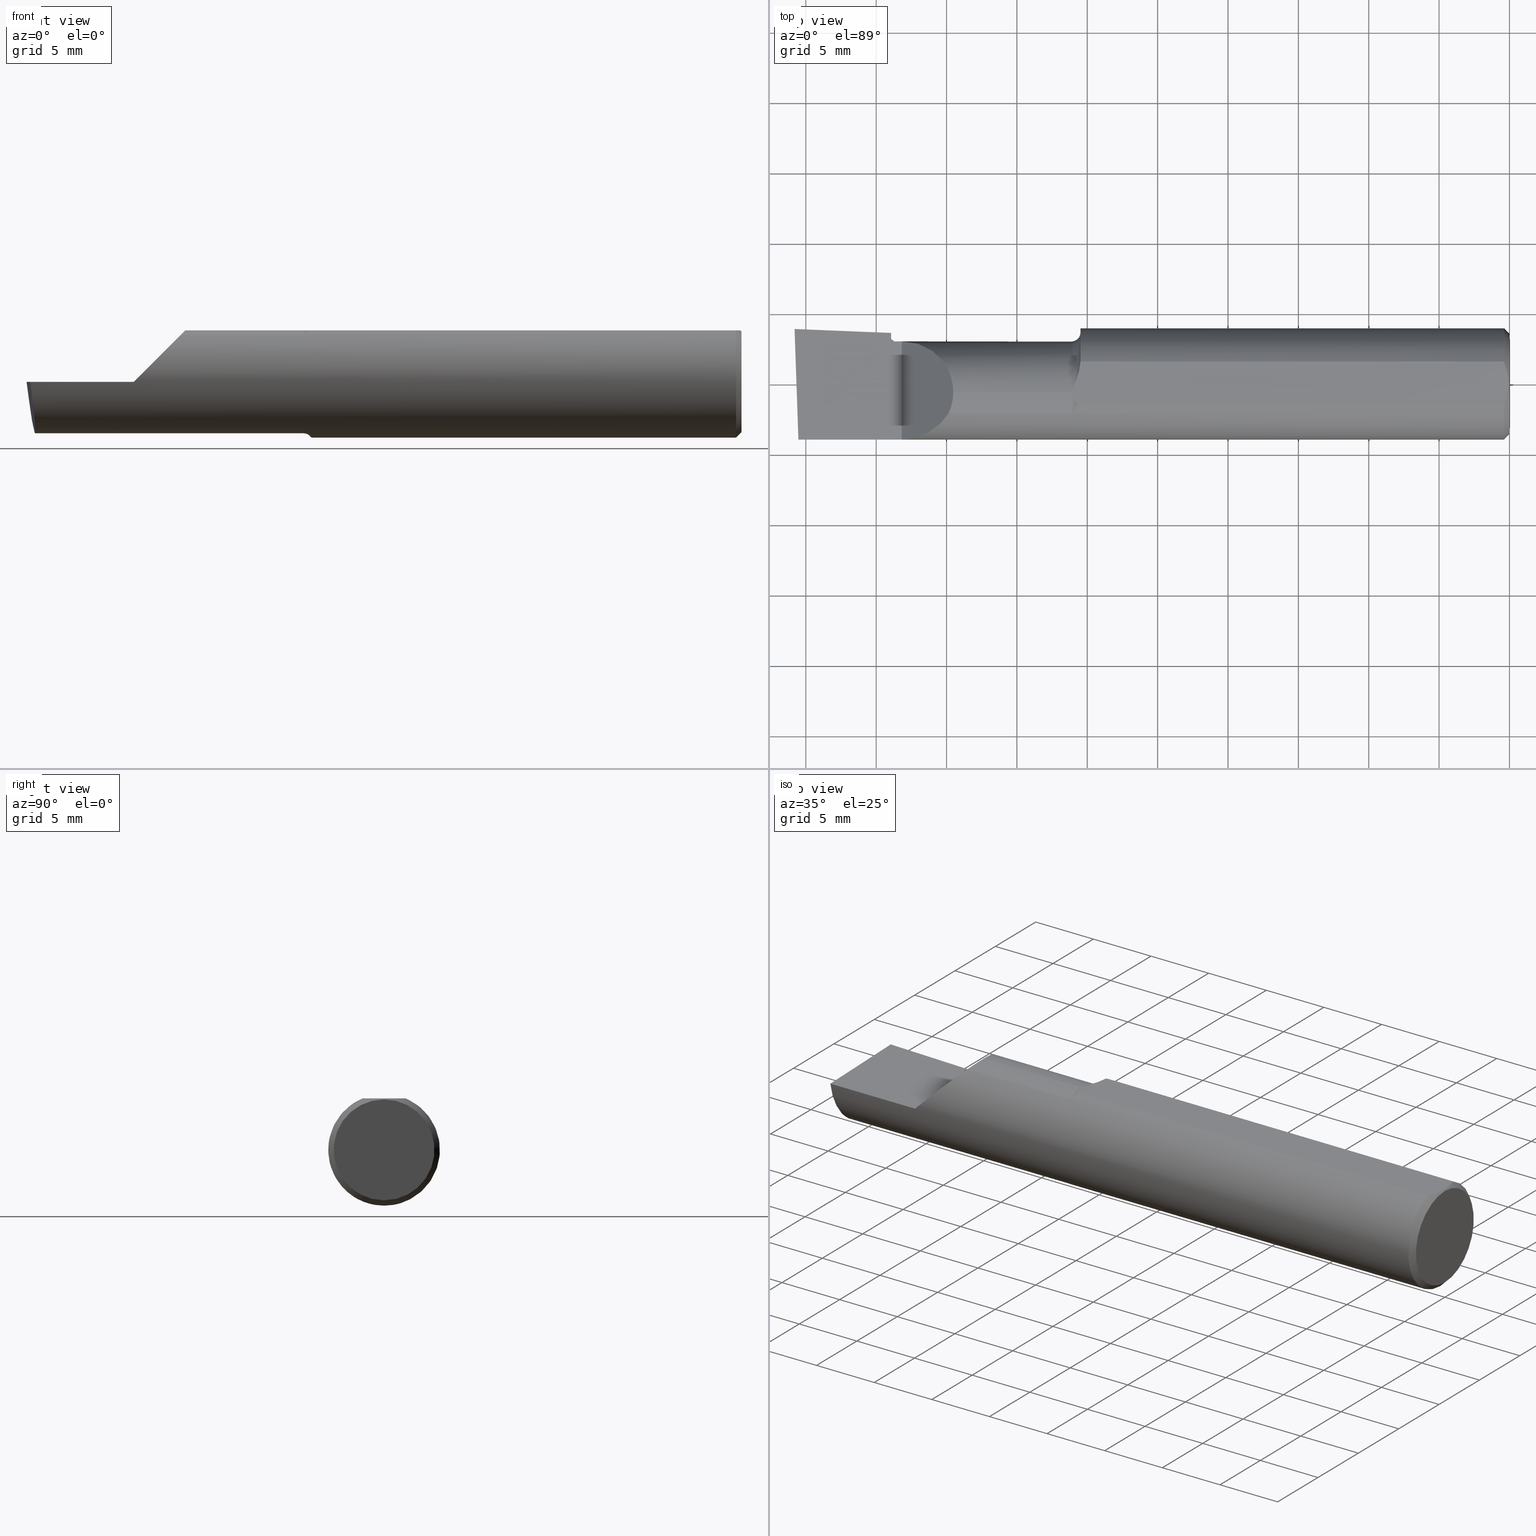
[diagram: canonical four-view strip — front | top / right | iso, engineering-drawing reading convention]
A machine part, canonical four-view strip (front | top / right | iso — engineering-drawing reading convention). The complete STEP part file that produces these views, byte-faithful:
ISO-10303-21;
HEADER;
FILE_DESCRIPTION (( 'STEP AP203' ),
    '1' );
FILE_NAME ('210486-LHBB316.STEP',
    '2024-09-03T19:15:56',
    ( '' ),
    ( '' ),
    'SwSTEP 2.0',
    'SolidWorks 2024',
    '' );
FILE_SCHEMA (( 'CONFIG_CONTROL_DESIGN' ));
ENDSEC;

DATA;
#1 = VERTEX_POINT ( 'NONE', #161 ) ;
#2 = PERSON ( 'UNSPECIFIED', 'UNSPECIFIED', 'UNSPECIFIED', ('UNSPECIFIED'), ('UNSPECIFIED'), ('UNSPECIFIED') ) ;
#3 = DIRECTION ( 'NONE',  ( 1.000000000000000000, -0.000000000000000000, -0.000000000000000000 ) ) ;
#4 = CARTESIAN_POINT ( 'NONE',  ( -1.199999999999999956, 0.1439000000000000001, 0.000000000000000000 ) ) ;
#5 = CARTESIAN_POINT ( 'NONE',  ( -1.921792024162326307, 0.1563505381603649824, -0.6373410996302685261 ) ) ;
#6 = EDGE_LOOP ( 'NONE', ( #236, #559, #581, #626, #584, #11, #518, #441 ) ) ;
#7 = EDGE_CURVE ( 'NONE', #64, #1, #43, .T. ) ;
#8 = CARTESIAN_POINT ( 'NONE',  ( -0.003000000000000205194, 0.01020794464685660825, 0.1440999999999999781 ) ) ;
#9 = EDGE_CURVE ( 'NONE', #199, #239, #747, .T. ) ;
#10 = CARTESIAN_POINT ( 'NONE',  ( -0.01500000000000024925, 0.000000000000000000, 0.000000000000000000 ) ) ;
#11 = ORIENTED_EDGE ( 'NONE', *, *, #192, .T. ) ;
#12 = CARTESIAN_POINT ( 'NONE',  ( -1.989266190342418916, -0.1561000000000000165, 3.826894855694925850E-18 ) ) ;
#13 = DIRECTION ( 'NONE',  ( 0.000000000000000000, 0.000000000000000000, 1.000000000000000000 ) ) ;
#14 = ORIENTED_EDGE ( 'NONE', *, *, #138, .F. ) ;
#15 = APPROVAL_PERSON_ORGANIZATION ( #600, #724, #86 ) ;
#16 = CARTESIAN_POINT ( 'NONE',  ( -1.814562659517192644, 0.08023483548401068310, -0.1148328337352035045 ) ) ;
#17 = FACE_OUTER_BOUND ( 'NONE', #218, .T. ) ;
#18 = CARTESIAN_POINT ( 'NONE',  ( -2.000000000000000000, 0.1536194554637218546, 0.000000000000000000 ) ) ;
#19 = CIRCLE ( 'NONE', #114, 0.1560999999999999888 ) ;
#20 =( LENGTH_UNIT ( ) NAMED_UNIT ( * ) SI_UNIT ( $, .METRE. ) );
#21 = CARTESIAN_POINT ( 'NONE',  ( -1.699999999999999289, 0.1188999999999999918, 3.826894855694925850E-18 ) ) ;
#22 = PLANE ( 'NONE',  #614 ) ;
#23 = CARTESIAN_POINT ( 'NONE',  ( -1.699999999999999289, 0.1560999999999999888, 3.826894855694925850E-18 ) ) ;
#24 = ORIENTED_EDGE ( 'NONE', *, *, #75, .T. ) ;
#25 = DIRECTION ( 'NONE',  ( 1.000000000000000000, -0.000000000000000000, -0.000000000000000000 ) ) ;
#26 = CARTESIAN_POINT ( 'NONE',  ( -1.979018954091639415, 0.02568722648642995585, -0.1346865397607137915 ) ) ;
#27 = EDGE_CURVE ( 'NONE', #46, #154, #739, .T. ) ;
#28 = VERTEX_POINT ( 'NONE', #285 ) ;
#29 = APPROVAL_ROLE ( '' ) ;
#30 = AXIS2_PLACEMENT_3D ( 'NONE', #4, #510, #743 ) ;
#31 = CARTESIAN_POINT ( 'NONE',  ( -1.977743596163801021, -0.1305938407426050218, -0.1009826174484538680 ) ) ;
#32 = ORIENTED_EDGE ( 'NONE', *, *, #714, .F. ) ;
#33 = CALENDAR_DATE ( 2024, 3, 9 ) ;
#34 = B_SPLINE_CURVE_WITH_KNOTS ( 'NONE', 3,
 ( #610, #200, #613, #375 ),
 .UNSPECIFIED., .F., .F.,
 ( 4, 4 ),
 ( 0.01176971488481077729, 0.01863345644698705811 ),
 .UNSPECIFIED. ) ;
#35 = DIRECTION ( 'NONE',  ( 0.07437990725530935210, -0.9370896517296886108, -0.3410727400684821498 ) ) ;
#36 = ORIENTED_EDGE ( 'NONE', *, *, #540, .F. ) ;
#37 = DATE_AND_TIME ( #733, #282 ) ;
#38 =( BOUNDED_CURVE ( )  B_SPLINE_CURVE ( 3, ( #12, #472, #31, #329 ),
 .UNSPECIFIED., .F., .T. ) 
 B_SPLINE_CURVE_WITH_KNOTS ( ( 4, 4 ),
 ( 4.987330662103038215, 5.976951217326482713 ),
 .UNSPECIFIED. ) 
 CURVE ( )  GEOMETRIC_REPRESENTATION_ITEM ( )  RATIONAL_B_SPLINE_CURVE ( ( 1.000000000000000000, 0.9200392120919973493, 0.9200392120919973493, 1.000000000000000000 ) ) 
 REPRESENTATION_ITEM ( '' )  );
#39 = EDGE_CURVE ( 'NONE', #740, #435, #54, .T. ) ;
#40 = CARTESIAN_POINT ( 'NONE',  ( -0.003000000000000204760, 6.421145895685612357E-21, 0.1440999999999999504 ) ) ;
#41 = CARTESIAN_POINT ( 'NONE',  ( -1.219310887745682415, -0.08198244806377583127, -0.1328448627315362007 ) ) ;
#42 = EDGE_LOOP ( 'NONE', ( #155, #78 ) ) ;
#43 = B_SPLINE_CURVE_WITH_KNOTS ( 'NONE', 3,
 ( #498, #396, #85, #324, #41, #665, #157, #290, #621, #174, #577, #233 ),
 .UNSPECIFIED., .F., .F.,
 ( 4, 2, 2, 2, 2, 4 ),
 ( 1.966861314596262993E-07, 0.0001139043861855364159, 0.0002276120862396131903, 0.0004550274863477684196, 0.0009098582865640782820, 0.001819519886996695621 ),
 .UNSPECIFIED. ) ;
#44 = CARTESIAN_POINT ( 'NONE',  ( -0.003000000000000204760, 6.421145895685612357E-21, 0.1440999999999999504 ) ) ;
#45 = DIRECTION ( 'NONE',  ( -1.000000000000000000, 0.000000000000000000, 0.000000000000000000 ) ) ;
#46 = VERTEX_POINT ( 'NONE', #457 ) ;
#47 = DATE_TIME_ROLE ( 'classification_date' ) ;
#48 = VERTEX_POINT ( 'NONE', #165 ) ;
#49 = VECTOR ( 'NONE', #259, 39.37007874015748143 ) ;
#50 = DIRECTION ( 'NONE',  ( 0.000000000000000000, 0.000000000000000000, 1.000000000000000000 ) ) ;
#51 = DIRECTION ( 'NONE',  ( 0.000000000000000000, 0.000000000000000000, 1.000000000000000000 ) ) ;
#52 = CARTESIAN_POINT ( 'NONE',  ( -1.729999999999999760, -0.05609999999999996934, 0.04000000000000000083 ) ) ;
#53 = CARTESIAN_POINT ( 'NONE',  ( -1.212837095251398045, -0.05422015848554274237, 0.1440999999999999781 ) ) ;
#54 = CIRCLE ( 'NONE', #476, 0.1439000000000000556 ) ;
#55 = CARTESIAN_POINT ( 'NONE',  ( -1.221844053232376659, -0.02500000000003146580, 0.1440999999999999504 ) ) ;
#56 = AXIS2_PLACEMENT_3D ( 'NONE', #245, #539, #592 ) ;
#57 = VECTOR ( 'NONE', #340, 39.37007874015748143 ) ;
#58 = CARTESIAN_POINT ( 'NONE',  ( -1.201996614417089937, 0.006087683071544712846, -0.1560999999999811150 ) ) ;
#59 = CARTESIAN_POINT ( 'NONE',  ( -1.224999999999999867, -0.02500000000000000486, 0.1688999999999999946 ) ) ;
#60 = APPLICATION_CONTEXT ( 'configuration controlled 3d designs of mechanical parts and assemblies' ) ;
#61 = DIRECTION ( 'NONE',  ( 0.000000000000000000, 0.000000000000000000, 1.000000000000000000 ) ) ;
#62 = PLANE ( 'NONE',  #92 ) ;
#63 = EDGE_CURVE ( 'NONE', #660, #500, #222, .T. ) ;
#64 = VERTEX_POINT ( 'NONE', #624 ) ;
#65 = ADVANCED_FACE ( 'NONE', ( #675 ), #679, .T. ) ;
#66 = PLANE ( 'NONE',  #571 ) ;
#67 = DIRECTION ( 'NONE',  ( -1.000000000000000000, 0.000000000000000000, 0.000000000000000000 ) ) ;
#68 = APPROVAL_PERSON_ORGANIZATION ( #213, #195, #263 ) ;
#69 = ORIENTED_EDGE ( 'NONE', *, *, #636, .T. ) ;
#70 = CIRCLE ( 'NONE', #130, 0.1410999999999999754 ) ;
#71 = EDGE_LOOP ( 'NONE', ( #376, #611, #330, #710, #335, #385, #166, #228, #291, #615, #159 ) ) ;
#72 = CARTESIAN_POINT ( 'NONE',  ( -1.989315288308734608, 0.1256128547571742360, -0.07906752438118828941 ) ) ;
#73 = DIRECTION ( 'NONE',  ( 0.000000000000000000, 0.000000000000000000, 1.000000000000000000 ) ) ;
#74 = CARTESIAN_POINT ( 'NONE',  ( 0.000000000000000000, 0.1188999999999999918, 3.826894855694925850E-18 ) ) ;
#75 = EDGE_CURVE ( 'NONE', #468, #201, #84, .T. ) ;
#76 = CARTESIAN_POINT ( 'NONE',  ( -1.224999999999999867, -0.08569999999999945717, 0.1304711462354803397 ) ) ;
#77 = CARTESIAN_POINT ( 'NONE',  ( -1.989266190342418916, -0.1561000000000000165, 3.826894855694925850E-18 ) ) ;
#78 = ORIENTED_EDGE ( 'NONE', *, *, #464, .T. ) ;
#79 = CARTESIAN_POINT ( 'NONE',  ( -1.220308733175471394, -0.08325729668116119142, 0.1320471792325036975 ) ) ;
#80 = ADVANCED_FACE ( 'NONE', ( #168 ), #583, .F. ) ;
#81 = DIRECTION ( 'NONE',  ( 0.000000000000000000, 1.000000000000000000, 0.000000000000000000 ) ) ;
#82 = CC_DESIGN_PERSON_AND_ORGANIZATION_ASSIGNMENT ( #496, #382, ( #666 ) ) ;
#83 = CC_DESIGN_SECURITY_CLASSIFICATION ( #599, ( #717 ) ) ;
#84 = B_SPLINE_CURVE_WITH_KNOTS ( 'NONE', 3,
 ( #526, #515, #402, #461, #688, #112, #53, #738 ),
 .UNSPECIFIED., .F., .F.,
 ( 4, 2, 2, 4 ),
 ( 0.0006785821176393270473, 0.0009116715494801349694, 0.001144760981320943000, 0.001610939845002559495 ),
 .UNSPECIFIED. ) ;
#85 = CARTESIAN_POINT ( 'NONE',  ( -1.222162220462625459, -0.08489276752862864872, -0.1310023188550718254 ) ) ;
#86 = APPROVAL_ROLE ( '' ) ;
#87 = AXIS2_PLACEMENT_3D ( 'NONE', #586, #639, #13 ) ;
#88 = CARTESIAN_POINT ( 'NONE',  ( -1.719999999999999751, 0.02421669862456291358, -0.1352217681310924902 ) ) ;
#89 = ORIENTED_EDGE ( 'NONE', *, *, #140, .F. ) ;
#90 = MECHANICAL_CONTEXT ( 'NONE', #60, 'mechanical' ) ;
#91 = CIRCLE ( 'NONE', #452, 0.01000000000000016674 ) ;
#92 = AXIS2_PLACEMENT_3D ( 'NONE', #572, #298, #625 ) ;
#93 = CARTESIAN_POINT ( 'NONE',  ( -0.01500000000000024925, -0.06001999666777732556, 0.1440999999999999781 ) ) ;
#94 = ORIENTED_EDGE ( 'NONE', *, *, #27, .F. ) ;
#95 = SECURITY_CLASSIFICATION_LEVEL ( 'unclassified' ) ;
#96 = FACE_OUTER_BOUND ( 'NONE', #460, .T. ) ;
#97 = ORIENTED_EDGE ( 'NONE', *, *, #517, .F. ) ;
#98 = APPROVAL_DATE_TIME ( #616, #195 ) ;
#99 = ADVANCED_BREP_SHAPE_REPRESENTATION ( '210486-LHBB316', ( #489, #126 ), #708 ) ;
#100 = DIRECTION ( 'NONE',  ( 0.000000000000000000, 0.000000000000000000, 1.000000000000000000 ) ) ;
#101 = EDGE_CURVE ( 'NONE', #660, #295, #689, .T. ) ;
#102 = ORIENTED_EDGE ( 'NONE', *, *, #101, .T. ) ;
#103 = APPROVAL_STATUS ( 'not_yet_approved' ) ;
#104 = ORIENTED_EDGE ( 'NONE', *, *, #163, .T. ) ;
#105 = CARTESIAN_POINT ( 'NONE',  ( -0.01132650618349836762, 0.05046597439866586793, 0.1440999999999999781 ) ) ;
#106 = CARTESIAN_POINT ( 'NONE',  ( -1.556100000000000483, -0.04605394310600444824, 0.1439000000000000001 ) ) ;
#107 = EDGE_CURVE ( 'NONE', #443, #555, #297, .T. ) ;
#108 = DIRECTION ( 'NONE',  ( 0.03463576215158747917, -0.9994000019912839816, 0.000000000000000000 ) ) ;
#109 = DIRECTION ( 'NONE',  ( 0.000000000000000000, 0.000000000000000000, 1.000000000000000000 ) ) ;
#110 = ORIENTED_EDGE ( 'NONE', *, *, #277, .F. ) ;
#111 = DIRECTION ( 'NONE',  ( 0.000000000000000000, 0.000000000000000000, 1.000000000000000000 ) ) ;
#112 = CARTESIAN_POINT ( 'NONE',  ( -1.214985600317322278, -0.04846509284843829313, 0.1440999999999999504 ) ) ;
#113 = CARTESIAN_POINT ( 'NONE',  ( -1.556000000000000050, -0.1560999999999999888, 3.826894855694925850E-18 ) ) ;
#114 = AXIS2_PLACEMENT_3D ( 'NONE', #10, #516, #109 ) ;
#115 =( BOUNDED_CURVE ( )  B_SPLINE_CURVE ( 3, ( #719, #383, #434, #654 ),
 .UNSPECIFIED., .F., .T. ) 
 B_SPLINE_CURVE_WITH_KNOTS ( ( 4, 4 ),
 ( 0.5811757715714150896, 1.570796326794896558 ),
 .UNSPECIFIED. ) 
 CURVE ( )  GEOMETRIC_REPRESENTATION_ITEM ( )  RATIONAL_B_SPLINE_CURVE ( ( 1.000000000000000000, 0.9200392120919915762, 0.9200392120919915762, 1.000000000000000000 ) ) 
 REPRESENTATION_ITEM ( '' )  );
#116 = CARTESIAN_POINT ( 'NONE',  ( 0.000000000000000000, -0.02500000000000002220, -0.1439000000000000001 ) ) ;
#117 = ADVANCED_FACE ( 'NONE', ( #523 ), #333, .T. ) ;
#118 = FACE_OUTER_BOUND ( 'NONE', #210, .T. ) ;
#119 = ORIENTED_EDGE ( 'NONE', *, *, #365, .T. ) ;
#120 = CC_DESIGN_DATE_AND_TIME_ASSIGNMENT ( #322, #47, ( #599 ) ) ;
#121 = EDGE_CURVE ( 'NONE', #532, #154, #530, .T. ) ;
#122 = CARTESIAN_POINT ( 'NONE',  ( -1.199999999999999956, 0.07070000000000016549, -0.1391715488165593539 ) ) ;
#123 = CARTESIAN_POINT ( 'NONE',  ( -4.695363739110452099E-17, 1.819825143532968321E-17, -0.1410999999999999754 ) ) ;
#124 = ORIENTED_EDGE ( 'NONE', *, *, #250, .T. ) ;
#125 = DIRECTION ( 'NONE',  ( 1.000000000000000000, 0.000000000000000000, 0.000000000000000000 ) ) ;
#126 = AXIS2_PLACEMENT_3D ( 'NONE', #372, #503, #433 ) ;
#127 = PLANE ( 'NONE',  #669 ) ;
#128 = EDGE_LOOP ( 'NONE', ( #463, #662, #474 ) ) ;
#129 = CARTESIAN_POINT ( 'NONE',  ( -1.210843495424060334, -0.06001999666777309977, 0.1440999999999999504 ) ) ;
#130 = AXIS2_PLACEMENT_3D ( 'NONE', #141, #659, #271 ) ;
#131 = DIRECTION ( 'NONE',  ( -1.000000000000000000, 0.000000000000000000, 0.000000000000000000 ) ) ;
#132 = ORIENTED_EDGE ( 'NONE', *, *, #75, .F. ) ;
#133 = CARTESIAN_POINT ( 'NONE',  ( -1.203095797791018828, -0.008405471570478703636, -0.1561000000000260235 ) ) ;
#134 = EDGE_CURVE ( 'NONE', #640, #716, #349, .T. ) ;
#135 = CARTESIAN_POINT ( 'NONE',  ( -1.221844053232386651, -0.02136326841098645443, 0.1440999999999999781 ) ) ;
#136 = APPLICATION_CONTEXT ( 'configuration controlled 3d designs of mechanical parts and assemblies' ) ;
#137 = CARTESIAN_POINT ( 'NONE',  ( -1.213353959584569930, 0.002866311517163350631, 0.1440999999999999504 ) ) ;
#138 = EDGE_CURVE ( 'NONE', #46, #410, #398, .T. ) ;
#139 = CARTESIAN_POINT ( 'NONE',  ( -1.210843495424060334, -0.06001999666777309977, 0.1440999999999999504 ) ) ;
#140 = EDGE_CURVE ( 'NONE', #1, #532, #158, .T. ) ;
#141 = CARTESIAN_POINT ( 'NONE',  ( -4.695363739110451482E-17, -2.459287858768259838E-17, 0.000000000000000000 ) ) ;
#142 = VERTEX_POINT ( 'NONE', #588 ) ;
#143 =( NAMED_UNIT ( * ) SI_UNIT ( $, .STERADIAN. ) SOLID_ANGLE_UNIT ( ) );
#144 = VECTOR ( 'NONE', #597, 39.37007874015748143 ) ;
#145 = CARTESIAN_POINT ( 'NONE',  ( -1.729814999632692585, 0.07017856946061040713, -0.1184930152355836708 ) ) ;
#146 = LOCAL_TIME ( 12, 15, 56.00000000000000000, #721 ) ;
#147 = ORIENTED_EDGE ( 'NONE', *, *, #243, .F. ) ;
#148 = DATE_AND_TIME ( #33, #257 ) ;
#149 = CARTESIAN_POINT ( 'NONE',  ( 0.000000000000000000, 0.000000000000000000, 0.000000000000000000 ) ) ;
#150 = EDGE_LOOP ( 'NONE', ( #684, #185, #223, #656, #370 ) ) ;
#151 = APPROVAL_STATUS ( 'not_yet_approved' ) ;
#152 = CIRCLE ( 'NONE', #742, 0.2026556797788580666 ) ;
#153 = DIRECTION ( 'NONE',  ( -1.000000000000000000, 0.000000000000000000, 0.000000000000000000 ) ) ;
#154 = VERTEX_POINT ( 'NONE', #641 ) ;
#155 = ORIENTED_EDGE ( 'NONE', *, *, #306, .T. ) ;
#156 = DIRECTION ( 'NONE',  ( 0.000000000000000000, 0.000000000000000000, 1.000000000000000000 ) ) ;
#157 = CARTESIAN_POINT ( 'NONE',  ( -1.216062054560814065, -0.07627963852233830833, -0.1362221433799750137 ) ) ;
#158 = B_SPLINE_CURVE_WITH_KNOTS ( 'NONE', 3,
 ( #240, #582, #133, #300 ),
 .UNSPECIFIED., .F., .F.,
 ( 4, 4 ),
 ( 0.001819519886996695621, 0.002475127250578799606 ),
 .UNSPECIFIED. ) ;
#159 = ORIENTED_EDGE ( 'NONE', *, *, #540, .T. ) ;
#160 = DIRECTION ( 'NONE',  ( 1.000000000000000000, 0.000000000000000000, -0.000000000000000000 ) ) ;
#161 = CARTESIAN_POINT ( 'NONE',  ( -1.204862523376329708, -0.02500000000022616423, -0.1540850739039595629 ) ) ;
#162 = AXIS2_PLACEMENT_3D ( 'NONE', #237, #469, #230 ) ;
#163 = EDGE_CURVE ( 'NONE', #381, #176, #730, .T. ) ;
#164 = CARTESIAN_POINT ( 'NONE',  ( -1.729999999999999760, 0.1425688816766005063, 0.000000000000000000 ) ) ;
#165 = CARTESIAN_POINT ( 'NONE',  ( -1.699999999999999289, -0.1560999999999999888, 3.826894855694925850E-18 ) ) ;
#166 = ORIENTED_EDGE ( 'NONE', *, *, #328, .T. ) ;
#167 = DIRECTION ( 'NONE',  ( -1.000000000000000000, -0.000000000000000000, -0.000000000000000000 ) ) ;
#168 = FACE_OUTER_BOUND ( 'NONE', #299, .T. ) ;
#169 = CARTESIAN_POINT ( 'NONE',  ( -0.01133355301893011931, -0.05048430180739575668, 0.1440999999999999781 ) ) ;
#170 = DIRECTION ( 'NONE',  ( 0.000000000000000000, 0.000000000000000000, 1.000000000000000000 ) ) ;
#171 = EDGE_CURVE ( 'NONE', #176, #199, #403, .T. ) ;
#172 = CARTESIAN_POINT ( 'NONE',  ( -1.722129735053917088, 0.03180793362839300087, -0.1324587845483787274 ) ) ;
#173 = ORIENTED_EDGE ( 'NONE', *, *, #466, .F. ) ;
#174 = CARTESIAN_POINT ( 'NONE',  ( -1.207963511987622862, -0.04781653154435669406, -0.1490354188630817756 ) ) ;
#175 = CARTESIAN_POINT ( 'NONE',  ( -1.699999999999999289, 0.1188999999999999918, 3.826894855694925850E-18 ) ) ;
#176 = VERTEX_POINT ( 'NONE', #533 ) ;
#177 = CARTESIAN_POINT ( 'NONE',  ( -1.976713598110543035, -0.008170903630063810347, -0.1439000000000000279 ) ) ;
#178 = DIRECTION ( 'NONE',  ( -1.000000000000000000, 0.000000000000000000, 0.000000000000000000 ) ) ;
#179 = VECTOR ( 'NONE', #153, 39.37007874015748143 ) ;
#180 = CARTESIAN_POINT ( 'NONE',  ( -1.725157097429442343, 0.04322541840385416001, -0.1283031599399234168 ) ) ;
#181 = EDGE_LOOP ( 'NONE', ( #207, #734, #216, #548 ) ) ;
#182 = CARTESIAN_POINT ( 'NONE',  ( -1.899536200981946088, 0.08831477339941071203, -0.1118919768392790393 ) ) ;
#183 = LOCAL_TIME ( 12, 15, 56.00000000000000000, #553 ) ;
#184 = CARTESIAN_POINT ( 'NONE',  ( -1.224999999999999867, -0.02500000000000002914, -0.1688999999999999946 ) ) ;
#185 = ORIENTED_EDGE ( 'NONE', *, *, #306, .F. ) ;
#186 = CARTESIAN_POINT ( 'NONE',  ( -1.978902233428061486, 0.02421669862456291358, -0.1352217681310924902 ) ) ;
#187 = CARTESIAN_POINT ( 'NONE',  ( -1.199999999999999956, 0.06720526509779117807, 0.1409468955716051686 ) ) ;
#188 = AXIS2_PLACEMENT_3D ( 'NONE', #59, #673, #111 ) ;
#189 = DIRECTION ( 'NONE',  ( 1.000000000000000000, 0.000000000000000000, -0.000000000000000000 ) ) ;
#190 = CARTESIAN_POINT ( 'NONE',  ( -1.223558490372086416, -0.08570000000287456010, 0.1304711462335920724 ) ) ;
#191 = CARTESIAN_POINT ( 'NONE',  ( -1.976130359589496344, -0.02500000000000002220, -0.1439000000000000001 ) ) ;
#192 = EDGE_CURVE ( 'NONE', #640, #561, #627, .T. ) ;
#193 = CARTESIAN_POINT ( 'NONE',  ( -1.556100000000000483, -0.02500000000000000486, 0.1439000000000000001 ) ) ;
#194 = CIRCLE ( 'NONE', #507, 0.1439000000000000556 ) ;
#195 = APPROVAL ( #151, 'UNSPECIFIED' ) ;
#196 = EDGE_CURVE ( 'NONE', #48, #640, #355, .T. ) ;
#197 = DIRECTION ( 'NONE',  ( -1.000000000000000000, 0.000000000000000000, 0.000000000000000000 ) ) ;
#198 = CARTESIAN_POINT ( 'NONE',  ( -1.472499999999999698, -0.08569999999999981799, 0.1304711462354800622 ) ) ;
#199 = VERTEX_POINT ( 'NONE', #18 ) ;
#200 = CARTESIAN_POINT ( 'NONE',  ( -1.819999845125628957, 0.1462561883915259875, 3.826894855694925850E-18 ) ) ;
#201 = VERTEX_POINT ( 'NONE', #129 ) ;
#202 = CARTESIAN_POINT ( 'NONE',  ( -1.699999999999999956, -0.05609999999999996934, 0.04000000000000000083 ) ) ;
#203 = UNCERTAINTY_MEASURE_WITH_UNIT (LENGTH_MEASURE( 1.000000000000000082E-05 ), #421, 'distance_accuracy_value', 'NONE');
#204 = VERTEX_POINT ( 'NONE', #479 ) ;
#205 = CYLINDRICAL_SURFACE ( 'NONE', #317, 0.1560999999999999888 ) ;
#206 = CLOSED_SHELL ( 'NONE', ( #455, #80, #326, #682, #65, #234, #591, #589, #274, #521, #269, #440, #445, #543, #644, #557, #707, #117, #617, #722 ) ) ;
#207 = ORIENTED_EDGE ( 'NONE', *, *, #192, .F. ) ;
#208 = EDGE_CURVE ( 'NONE', #142, #443, #478, .T. ) ;
#209 = AXIS2_PLACEMENT_3D ( 'NONE', #225, #3, #284 ) ;
#210 = EDGE_LOOP ( 'NONE', ( #552, #393, #173, #276, #508, #124, #119 ) ) ;
#211 = CARTESIAN_POINT ( 'NONE',  ( -1.729814999632692585, 0.07017856946061040713, -0.1184930152355836708 ) ) ;
#212 = ORIENTED_EDGE ( 'NONE', *, *, #250, .F. ) ;
#213 = PERSON_AND_ORGANIZATION ( #2, #314 ) ;
#214 = CARTESIAN_POINT ( 'NONE',  ( -1.729999999999999760, 0.1891209999999999003, 0.000000000000000000 ) ) ;
#215 = EDGE_CURVE ( 'NONE', #410, #468, #458, .T. ) ;
#216 = ORIENTED_EDGE ( 'NONE', *, *, #351, .F. ) ;
#217 = PERSON_AND_ORGANIZATION_ROLE ( 'classification_officer' ) ;
#218 = EDGE_LOOP ( 'NONE', ( #602, #448, #593, #36 ) ) ;
#219 = AXIS2_PLACEMENT_3D ( 'NONE', #427, #197, #535 ) ;
#220 = FACE_OUTER_BOUND ( 'NONE', #429, .T. ) ;
#221 = CARTESIAN_POINT ( 'NONE',  ( -1.199999999999999956, 0.06524677665729021470, -0.1419418197060338949 ) ) ;
#222 = CIRCLE ( 'NONE', #511, 0.1560999999999999888 ) ;
#223 = ORIENTED_EDGE ( 'NONE', *, *, #243, .T. ) ;
#224 = VECTOR ( 'NONE', #288, 39.37007874015748143 ) ;
#225 = CARTESIAN_POINT ( 'NONE',  ( -1.224999999999999867, -0.02500000000000000486, 0.000000000000000000 ) ) ;
#226 = CARTESIAN_POINT ( 'NONE',  ( -1.224999999999999867, -0.02500000000000000486, 0.000000000000000000 ) ) ;
#227 = DIRECTION ( 'NONE',  ( -0.1219414168599299436, 0.000000000000000000, 0.9925372994775525370 ) ) ;
#228 = ORIENTED_EDGE ( 'NONE', *, *, #351, .T. ) ;
#229 = CARTESIAN_POINT ( 'NONE',  ( -0.01500000000000024925, -0.06001999666777732556, 0.1440999999999999781 ) ) ;
#230 = DIRECTION ( 'NONE',  ( 0.000000000000000000, 0.000000000000000000, 1.000000000000000000 ) ) ;
#231 = ORIENTED_EDGE ( 'NONE', *, *, #171, .F. ) ;
#232 = CARTESIAN_POINT ( 'NONE',  ( -1.729999999999999760, 0.1026580227690523234, -0.08595719412995889153 ) ) ;
#233 = CARTESIAN_POINT ( 'NONE',  ( -1.204862523376329708, -0.02500000000022616423, -0.1540850739039595629 ) ) ;
#234 = ADVANCED_FACE ( 'NONE', ( #541 ), #303, .T. ) ;
#235 = CARTESIAN_POINT ( 'NONE',  ( -1.727833546180563173, 0.05470044517252301702, -0.1241265917587200951 ) ) ;
#236 = ORIENTED_EDGE ( 'NONE', *, *, #107, .F. ) ;
#237 = CARTESIAN_POINT ( 'NONE',  ( 0.000000000000000000, -0.02500000000000000486, 0.000000000000000000 ) ) ;
#238 = DIRECTION ( 'NONE',  ( -0.9919506264397697226, -0.03437759245050081569, -0.1218693392246628232 ) ) ;
#239 = VERTEX_POINT ( 'NONE', #77 ) ;
#240 = CARTESIAN_POINT ( 'NONE',  ( -1.204862523376329708, -0.02500000000022616423, -0.1540850739039595629 ) ) ;
#241 = CONICAL_SURFACE ( 'NONE', #471, 0.1410999999999997534, 0.7853981633974471688 ) ;
#242 = CARTESIAN_POINT ( 'NONE',  ( 2.000000000000000000, 0.06250000000000000000, 0.1440999999999999504 ) ) ;
#243 = EDGE_CURVE ( 'NONE', #204, #295, #485, .T. ) ;
#244 = ORIENTED_EDGE ( 'NONE', *, *, #388, .F. ) ;
#245 = CARTESIAN_POINT ( 'NONE',  ( -2.000000000000000000, 0.000000000000000000, 0.000000000000000000 ) ) ;
#246 = CARTESIAN_POINT ( 'NONE',  ( -1.217376702052392234, -0.07908290169519976986, 0.1346075232099597230 ) ) ;
#247 = DIRECTION ( 'NONE',  ( -1.000000000000000000, 0.000000000000000000, 0.000000000000000000 ) ) ;
#248 = AXIS2_PLACEMENT_3D ( 'NONE', #678, #735, #729 ) ;
#249 = CARTESIAN_POINT ( 'NONE',  ( -1.699999999999999289, 0.1560999999999999888, 3.826894855694925850E-18 ) ) ;
#250 = EDGE_CURVE ( 'NONE', #716, #632, #91, .T. ) ;
#251 = CARTESIAN_POINT ( 'NONE',  ( -1.975676552398976993, -0.08569999999999981799, -0.1304711462354800622 ) ) ;
#252 = CC_DESIGN_PERSON_AND_ORGANIZATION_ASSIGNMENT ( #331, #217, ( #599 ) ) ;
#253 = EDGE_CURVE ( 'NONE', #239, #142, #38, .T. ) ;
#254 = CARTESIAN_POINT ( 'NONE',  ( -1.212083001804619808, -0.06507129184707168001, 0.1419960532975073630 ) ) ;
#255 = CARTESIAN_POINT ( 'NONE',  ( -1.221844053232376659, -0.02500000000003146580, 0.1440999999999999504 ) ) ;
#256 = ORIENTED_EDGE ( 'NONE', *, *, #484, .F. ) ;
#257 = LOCAL_TIME ( 12, 15, 56.00000000000000000, #661 ) ;
#258 = DIRECTION ( 'NONE',  ( 0.000000000000000000, 0.000000000000000000, 1.000000000000000000 ) ) ;
#259 = DIRECTION ( 'NONE',  ( 1.000000000000000000, 0.000000000000000000, 0.000000000000000000 ) ) ;
#260 = B_SPLINE_CURVE_WITH_KNOTS ( 'NONE', 3,
 ( #211, #369, #264, #268 ),
 .UNSPECIFIED., .F., .F.,
 ( 4, 4 ),
 ( 0.0007543384935521732114, 0.001937388479694054401 ),
 .UNSPECIFIED. ) ;
#261 = AXIS2_PLACEMENT_3D ( 'NONE', #346, #579, #170 ) ;
#262 = ORIENTED_EDGE ( 'NONE', *, *, #163, .F. ) ;
#263 = APPROVAL_ROLE ( '' ) ;
#264 = CARTESIAN_POINT ( 'NONE',  ( -1.729999999999999538, 0.09307971088233885082, -0.09802981822343460883 ) ) ;
#265 = ORIENTED_EDGE ( 'NONE', *, *, #664, .T. ) ;
#266 = PERSON_AND_ORGANIZATION_ROLE ( 'design_owner' ) ;
#267 = DIRECTION ( 'NONE',  ( 0.000000000000000000, -0.9396926207859105373, -0.3420201433256629397 ) ) ;
#268 = CARTESIAN_POINT ( 'NONE',  ( -1.729999999999999760, 0.1026580227690523234, -0.08595719412995889153 ) ) ;
#269 = ADVANCED_FACE ( 'NONE', ( #529 ), #550, .T. ) ;
#270 = EDGE_LOOP ( 'NONE', ( #406, #439, #391, #672 ) ) ;
#271 = DIRECTION ( 'NONE',  ( 1.742939658942782065E-16, -1.000000000000000000, 0.000000000000000000 ) ) ;
#272 = VERTEX_POINT ( 'NONE', #547 ) ;
#273 = ORIENTED_EDGE ( 'NONE', *, *, #171, .T. ) ;
#274 = ADVANCED_FACE ( 'NONE', ( #96 ), #205, .T. ) ;
#275 = CARTESIAN_POINT ( 'NONE',  ( -0.003000000000000203892, -0.01021764673483457724, 0.1440999999999999781 ) ) ;
#276 = ORIENTED_EDGE ( 'NONE', *, *, #196, .T. ) ;
#277 = EDGE_CURVE ( 'NONE', #381, #486, #260, .T. ) ;
#278 = AXIS2_PLACEMENT_3D ( 'NONE', #560, #390, #100 ) ;
#279 = CARTESIAN_POINT ( 'NONE',  ( -1.719999999999999751, -0.02500000000000002220, 0.000000000000000000 ) ) ;
#280 = FACE_OUTER_BOUND ( 'NONE', #327, .T. ) ;
#281 = CARTESIAN_POINT ( 'NONE',  ( -1.200977043369841457, 0.02442086657637503738, -0.1542995754677715381 ) ) ;
#282 = LOCAL_TIME ( 12, 15, 56.00000000000000000, #603 ) ;
#283 = VERTEX_POINT ( 'NONE', #88 ) ;
#284 = DIRECTION ( 'NONE',  ( 0.000000000000000000, 0.000000000000000000, 1.000000000000000000 ) ) ;
#285 = CARTESIAN_POINT ( 'NONE',  ( -1.978902233428061486, 0.02421669862456291358, -0.1352217681310924902 ) ) ;
#286 = VECTOR ( 'NONE', #482, 39.37007874015748143 ) ;
#287 = TOROIDAL_SURFACE ( 'NONE', #209, 0.1688999999999999946, 0.02499999999999993894 ) ;
#288 = DIRECTION ( 'NONE',  ( 1.000000000000000000, -0.000000000000000000, -0.000000000000000000 ) ) ;
#289 = PRODUCT ( '210486-LHBB316', '210486-LHBB316', '', ( #90 ) ) ;
#290 = CARTESIAN_POINT ( 'NONE',  ( -1.213126895908789082, -0.06887538526317453502, -0.1401954838979543039 ) ) ;
#291 = ORIENTED_EDGE ( 'NONE', *, *, #466, .T. ) ;
#292 = FACE_OUTER_BOUND ( 'NONE', #270, .T. ) ;
#293 = DIRECTION ( 'NONE',  ( 1.000000000000000000, -0.000000000000000000, -0.000000000000000000 ) ) ;
#294 = EDGE_CURVE ( 'NONE', #176, #28, #551, .T. ) ;
#295 = VERTEX_POINT ( 'NONE', #40 ) ;
#296 = VECTOR ( 'NONE', #531, 39.37007874015748143 ) ;
#297 = LINE ( 'NONE', #116, #674 ) ;
#298 = DIRECTION ( 'NONE',  ( 0.000000000000000000, 0.000000000000000000, 1.000000000000000000 ) ) ;
#299 = EDGE_LOOP ( 'NONE', ( #132, #313, #728, #635 ) ) ;
#300 = CARTESIAN_POINT ( 'NONE',  ( -1.202458313762935216, 4.839806556636975714E-13, -0.1560999999999999888 ) ) ;
#301 = CARTESIAN_POINT ( 'NONE',  ( 0.000000000000000000, 1.727976633596912104E-17, -0.1410999999999997534 ) ) ;
#302 = ORIENTED_EDGE ( 'NONE', *, *, #411, .F. ) ;
#303 = CYLINDRICAL_SURFACE ( 'NONE', #56, 0.1560999999999999888 ) ;
#304 = DIRECTION ( 'NONE',  ( 1.742939658942782065E-16, -1.000000000000000000, 0.000000000000000000 ) ) ;
#305 = CARTESIAN_POINT ( 'NONE',  ( -1.615705331625488350, 0.1188999999999999918, 0.08429466837451159156 ) ) ;
#306 = EDGE_CURVE ( 'NONE', #204, #618, #70, .T. ) ;
#307 = B_SPLINE_CURVE_WITH_KNOTS ( 'NONE', 3,
 ( #139, #254, #646, #594, #246, #424, #79, #701, #190, #76 ),
 .UNSPECIFIED., .F., .F.,
 ( 4, 2, 2, 2, 4 ),
 ( 5.292347910191260537E-07, 0.0004247077115782368971, 0.0006367969499718471914, 0.0007428415691686544257, 0.0008488861883654617684 ),
 .UNSPECIFIED. ) ;
#308 = CARTESIAN_POINT ( 'NONE',  ( -1.218418672230969113, -0.01083899323586103892, 0.1440999999999999781 ) ) ;
#309 = CARTESIAN_POINT ( 'NONE',  ( -1.975400702430881505, -0.04605394310600641888, -0.1439000000000000001 ) ) ;
#310 = ORIENTED_EDGE ( 'NONE', *, *, #642, .T. ) ;
#311 = DIRECTION ( 'NONE',  ( 0.000000000000000000, -1.707404996040168702E-16, -1.000000000000000000 ) ) ;
#312 = LINE ( 'NONE', #556, #336 ) ;
#313 = ORIENTED_EDGE ( 'NONE', *, *, #484, .T. ) ;
#314 = ORGANIZATION ( 'UNSPECIFIED', 'UNSPECIFIED', '' ) ;
#315 = APPROVAL_DATE_TIME ( #727, #520 ) ;
#316 = CARTESIAN_POINT ( 'NONE',  ( -1.200050504025077291, 0.06001999666777733250, 0.1440999999999999504 ) ) ;
#317 = AXIS2_PLACEMENT_3D ( 'NONE', #663, #497, #715 ) ;
#318 = AXIS2_PLACEMENT_3D ( 'NONE', #242, #423, #189 ) ;
#319 = ORIENTED_EDGE ( 'NONE', *, *, #408, .F. ) ;
#320 = DIRECTION ( 'NONE',  ( -1.000000000000000000, 0.000000000000000000, 0.000000000000000000 ) ) ;
#321 = ORIENTED_EDGE ( 'NONE', *, *, #208, .F. ) ;
#322 = DATE_AND_TIME ( #377, #373 ) ;
#323 = CARTESIAN_POINT ( 'NONE',  ( -2.000000000000000000, -0.06001999666777736719, 0.1440999999999999504 ) ) ;
#324 = CARTESIAN_POINT ( 'NONE',  ( -1.220128093538974667, -0.08306175160951267955, -0.1321708551218282179 ) ) ;
#325 = APPROVAL_STATUS ( 'not_yet_approved' ) ;
#326 = ADVANCED_FACE ( 'NONE', ( #428 ), #241, .T. ) ;
#327 = EDGE_LOOP ( 'NONE', ( #414, #262, #69, #470 ) ) ;
#328 = EDGE_CURVE ( 'NONE', #740, #272, #606, .T. ) ;
#329 = CARTESIAN_POINT ( 'NONE',  ( -1.975676552398976993, -0.08569999999999981799, -0.1304711462354800622 ) ) ;
#330 = ORIENTED_EDGE ( 'NONE', *, *, #408, .T. ) ;
#331 = PERSON_AND_ORGANIZATION ( #2, #314 ) ;
#332 = CARTESIAN_POINT ( 'NONE',  ( -1.560647864559970843, -0.06661082633900061722, 0.1393521354400298062 ) ) ;
#333 = PLANE ( 'NONE',  #30 ) ;
#334 = DIRECTION ( 'NONE',  ( 0.000000000000000000, -0.3420201433256629397, 0.9396926207859105373 ) ) ;
#335 = ORIENTED_EDGE ( 'NONE', *, *, #374, .T. ) ;
#336 = VECTOR ( 'NONE', #723, 39.37007874015748143 ) ;
#337 = CARTESIAN_POINT ( 'NONE',  ( -1.976130359589496344, -0.02500000000000002220, -0.1439000000000000001 ) ) ;
#338 = DIRECTION ( 'NONE',  ( 0.000000000000000000, 0.000000000000000000, 1.000000000000000000 ) ) ;
#339 = CC_DESIGN_APPROVAL ( #520, ( #717 ) ) ;
#340 = DIRECTION ( 'NONE',  ( 1.000000000000000000, -0.000000000000000000, -0.000000000000000000 ) ) ;
#341 = CARTESIAN_POINT ( 'NONE',  ( -1.202458313762935216, 4.839806556636975714E-13, -0.1560999999999999888 ) ) ;
#342 = B_SPLINE_CURVE_WITH_KNOTS ( 'NONE', 3,
 ( #683, #453, #235, #180, #459, #172, #467, #676 ),
 .UNSPECIFIED., .F., .F.,
 ( 4, 2, 2, 4 ),
 ( 0.0009095538863544276901, 0.001557459001916062982, 0.001881411559696882741, 0.002205364117477702501 ),
 .UNSPECIFIED. ) ;
#343 = CONICAL_SURFACE ( 'NONE', #419, 0.1410999999999997534, 0.7853981633974471688 ) ;
#344 = EDGE_CURVE ( 'NONE', #28, #283, #491, .T. ) ;
#345 = PLANE ( 'NONE',  #690 ) ;
#346 = CARTESIAN_POINT ( 'NONE',  ( -1.224999999999999867, -0.02500000000000000486, 0.000000000000000000 ) ) ;
#347 =( BOUNDED_CURVE ( )  B_SPLINE_CURVE ( 3, ( #514, #106, #332, #401 ),
 .UNSPECIFIED., .F., .F. ) 
 B_SPLINE_CURVE_WITH_KNOTS ( ( 4, 4 ),
 ( 0.000000000000000000, 0.4354524910905175905 ),
 .UNSPECIFIED. ) 
 CURVE ( )  GEOMETRIC_REPRESENTATION_ITEM ( )  RATIONAL_B_SPLINE_CURVE ( ( 1.000000000000000000, 0.9842607512044772022, 0.9842607512044772022, 1.000000000000000000 ) ) 
 REPRESENTATION_ITEM ( '' )  );
#348 = EDGE_LOOP ( 'NONE', ( #697, #578, #367, #102, #147 ) ) ;
#349 = LINE ( 'NONE', #74, #604 ) ;
#350 = CARTESIAN_POINT ( 'NONE',  ( -2.000000000000000000, 0.06001999666777736719, 0.1440999999999999504 ) ) ;
#351 = EDGE_CURVE ( 'NONE', #272, #48, #115, .T. ) ;
#352 = VERTEX_POINT ( 'NONE', #93 ) ;
#353 = TOROIDAL_SURFACE ( 'NONE', #87, 0.1688999999999999946, 0.02499999999999993894 ) ;
#354 = CC_DESIGN_PERSON_AND_ORGANIZATION_ASSIGNMENT ( #713, #266, ( #289 ) ) ;
#355 = LINE ( 'NONE', #23, #286 ) ;
#356 = EDGE_LOOP ( 'NONE', ( #104, #273, #244, #720, #110 ) ) ;
#357 = VECTOR ( 'NONE', #709, 39.37007874015748143 ) ;
#358 = CARTESIAN_POINT ( 'NONE',  ( 0.000000000000000000, 0.000000000000000000, 0.1410999999999997534 ) ) ;
#359 = FACE_OUTER_BOUND ( 'NONE', #42, .T. ) ;
#360 = CARTESIAN_POINT ( 'NONE',  ( -1.729814999632692585, 0.07017856946061040713, -0.1184930152355836708 ) ) ;
#361 = CARTESIAN_POINT ( 'NONE',  ( -1.224999999999999867, -0.02500000000000002220, -0.1439000000000000556 ) ) ;
#362 = CARTESIAN_POINT ( 'NONE',  ( -1.984581445594569393, 0.09576735185321395838, -0.1091794601134920550 ) ) ;
#363 = FACE_OUTER_BOUND ( 'NONE', #150, .T. ) ;
#364 = DIRECTION ( 'NONE',  ( 0.000000000000000000, 1.000000000000000000, 0.000000000000000000 ) ) ;
#365 = EDGE_CURVE ( 'NONE', #632, #488, #711, .T. ) ;
#366 = CARTESIAN_POINT ( 'NONE',  ( -1.200050504025077291, 0.06001999666777733250, 0.1440999999999999504 ) ) ;
#367 = ORIENTED_EDGE ( 'NONE', *, *, #63, .F. ) ;
#368 = CARTESIAN_POINT ( 'NONE',  ( -1.224999999999999867, -0.08569999999999945717, 0.1304711462354803397 ) ) ;
#369 = CARTESIAN_POINT ( 'NONE',  ( -1.729827022935804148, 0.08225231600195156978, -0.1088739315238990979 ) ) ;
#370 = ORIENTED_EDGE ( 'NONE', *, *, #609, .F. ) ;
#371 = VECTOR ( 'NONE', #320, 39.37007874015748143 ) ;
#372 = CARTESIAN_POINT ( 'NONE',  ( 0.000000000000000000, 0.000000000000000000, 0.000000000000000000 ) ) ;
#373 = LOCAL_TIME ( 12, 15, 56.00000000000000000, #612 ) ;
#374 = EDGE_CURVE ( 'NONE', #352, #201, #378, .T. ) ;
#375 = CARTESIAN_POINT ( 'NONE',  ( -2.000000000000000000, 0.1536194554637218546, 0.000000000000000000 ) ) ;
#376 = ORIENTED_EDGE ( 'NONE', *, *, #7, .T. ) ;
#377 = CALENDAR_DATE ( 2024, 3, 9 ) ;
#378 = LINE ( 'NONE', #323, #371 ) ;
#379 = AXIS2_PLACEMENT_3D ( 'NONE', #202, #650, #81 ) ;
#380 = CIRCLE ( 'NONE', #638, 0.1538999999999999535 ) ;
#381 = VERTEX_POINT ( 'NONE', #145 ) ;
#382 = PERSON_AND_ORGANIZATION_ROLE ( 'creator' ) ;
#383 = CARTESIAN_POINT ( 'NONE',  ( -1.599017382551542799, -0.1305938407426030234, 0.1009826174484575595 ) ) ;
#384 = EDGE_CURVE ( 'NONE', #435, #555, #566, .T. ) ;
#385 = ORIENTED_EDGE ( 'NONE', *, *, #748, .T. ) ;
#386 = PERSON_AND_ORGANIZATION ( #2, #314 ) ;
#387 = CC_DESIGN_PERSON_AND_ORGANIZATION_ASSIGNMENT ( #657, #562, ( #717 ) ) ;
#388 = EDGE_CURVE ( 'NONE', #488, #199, #34, .T. ) ;
#389 = ORIENTED_EDGE ( 'NONE', *, *, #121, .F. ) ;
#390 = DIRECTION ( 'NONE',  ( 1.000000000000000000, -0.000000000000000000, -0.000000000000000000 ) ) ;
#391 = ORIENTED_EDGE ( 'NONE', *, *, #328, .F. ) ;
#392 = AXIS2_PLACEMENT_3D ( 'NONE', #545, #25, #73 ) ;
#393 = ORIENTED_EDGE ( 'NONE', *, *, #9, .T. ) ;
#394 = FACE_OUTER_BOUND ( 'NONE', #712, .T. ) ;
#395 = DIRECTION ( 'NONE',  ( 0.000000000000000000, 0.000000000000000000, -1.000000000000000000 ) ) ;
#396 = CARTESIAN_POINT ( 'NONE',  ( -1.223482932671292378, -0.08569999999999960982, -0.1304711462354802010 ) ) ;
#397 = VECTOR ( 'NONE', #35, 39.37007874015748854 ) ;
#398 = B_SPLINE_CURVE_WITH_KNOTS ( 'NONE', 3,
 ( #705, #187, #420, #366 ),
 .UNSPECIFIED., .F., .F.,
 ( 4, 4 ),
 ( 0.002773882331925835425, 0.003069179409190571188 ),
 .UNSPECIFIED. ) ;
#399 = LINE ( 'NONE', #575, #224 ) ;
#400 = CARTESIAN_POINT ( 'NONE',  ( -1.201609734521864148, 0.01225372253022622218, -0.1557388326591280514 ) ) ;
#401 = CARTESIAN_POINT ( 'NONE',  ( -1.569528853764517340, -0.08569999999999478035, 0.1304711462354828655 ) ) ;
#402 = CARTESIAN_POINT ( 'NONE',  ( -1.221036826405246245, -0.03107590170041930194, 0.1440999999999999781 ) ) ;
#403 =( BOUNDED_CURVE ( )  B_SPLINE_CURVE ( 3, ( #536, #72, #637, #426 ),
 .UNSPECIFIED., .F., .T. ) 
 B_SPLINE_CURVE_WITH_KNOTS ( ( 4, 4 ),
 ( 4.206370596475379031, 4.793754225472307340 ),
 .UNSPECIFIED. ) 
 CURVE ( )  GEOMETRIC_REPRESENTATION_ITEM ( )  RATIONAL_B_SPLINE_CURVE ( ( 1.000000000000000000, 0.9714544434386379601, 0.9714544434386379601, 1.000000000000000000 ) ) 
 REPRESENTATION_ITEM ( '' )  );
#404 = CARTESIAN_POINT ( 'NONE',  ( -1.224999999999999867, -0.02500000000000000486, 0.1439000000000000556 ) ) ;
#405 = CARTESIAN_POINT ( 'NONE',  ( -0.004112937275917732775, 0.02048434576366622156, 0.1440999999999999226 ) ) ;
#406 = ORIENTED_EDGE ( 'NONE', *, *, #480, .F. ) ;
#407 = CARTESIAN_POINT ( 'NONE',  ( -1.200214390677044163, 0.04807667021748289471, -0.1486381104007177822 ) ) ;
#408 = EDGE_CURVE ( 'NONE', #532, #500, #312, .T. ) ;
#409 = LINE ( 'NONE', #350, #546 ) ;
#410 = VERTEX_POINT ( 'NONE', #316 ) ;
#411 = EDGE_CURVE ( 'NONE', #154, #46, #595, .T. ) ;
#412 = CARTESIAN_POINT ( 'NONE',  ( -1.204082834115635547, 0.03088512097719125701, 0.1440999999999999781 ) ) ;
#413 = DIRECTION ( 'NONE',  ( 1.000000000000000000, -0.000000000000000000, -0.000000000000000000 ) ) ;
#414 = ORIENTED_EDGE ( 'NONE', *, *, #294, .F. ) ;
#415 = CARTESIAN_POINT ( 'NONE',  ( -1.556100000000000039, 0.05929466837451162486, 0.1439000000000000001 ) ) ;
#416 = DIRECTION ( 'NONE',  ( 0.000000000000000000, -1.000000000000000000, 1.224646799147353207E-16 ) ) ;
#417 = ORIENTED_EDGE ( 'NONE', *, *, #7, .F. ) ;
#418 = TOROIDAL_SURFACE ( 'NONE', #538, 0.1538999999999999535, 0.01000000000000008174 ) ;
#419 = AXIS2_PLACEMENT_3D ( 'NONE', #703, #45, #522 ) ;
#420 = CARTESIAN_POINT ( 'NONE',  ( -1.200016018626790748, 0.06364538733738611676, 0.1425899657466627724 ) ) ;
#421 =( CONVERSION_BASED_UNIT ( 'INCH', #706 ) LENGTH_UNIT ( ) NAMED_UNIT ( #506 ) );
#422 = CARTESIAN_POINT ( 'NONE',  ( -1.210816084744946730, 0.009840729273029055410, 0.1440999999999999781 ) ) ;
#423 = DIRECTION ( 'NONE',  ( 0.000000000000000000, 0.000000000000000000, 1.000000000000000000 ) ) ;
#424 = CARTESIAN_POINT ( 'NONE',  ( -1.219508261956889328, -0.08224208440130478803, 0.1326837206089796772 ) ) ;
#425 = EDGE_CURVE ( 'NONE', #295, #352, #573, .T. ) ;
#426 = CARTESIAN_POINT ( 'NONE',  ( -2.000000000000000000, 0.1536194554637218546, 0.000000000000000000 ) ) ;
#427 = CARTESIAN_POINT ( 'NONE',  ( -1.719999999999999751, -0.02500000000000000486, 0.000000000000000000 ) ) ;
#428 = FACE_OUTER_BOUND ( 'NONE', #348, .T. ) ;
#429 = EDGE_LOOP ( 'NONE', ( #544, #558, #24, #630, #454, #563 ) ) ;
#430 =( NAMED_UNIT ( * ) PLANE_ANGLE_UNIT ( ) SI_UNIT ( $, .RADIAN. ) );
#431 = DIRECTION ( 'NONE',  ( -1.000000000000000000, 0.000000000000000000, 0.000000000000000000 ) ) ;
#432 = ORIENTED_EDGE ( 'NONE', *, *, #726, .T. ) ;
#433 = DIRECTION ( 'NONE',  ( 1.000000000000000000, 0.000000000000000000, 0.000000000000000000 ) ) ;
#434 = CARTESIAN_POINT ( 'NONE',  ( -1.646287522244398893, -0.1560999999999999888, 0.05371247775560067383 ) ) ;
#435 = VERTEX_POINT ( 'NONE', #404 ) ;
#436 = VECTOR ( 'NONE', #108, 39.37007874015748854 ) ;
#437 = DIRECTION ( 'NONE',  ( -1.000000000000000000, 0.000000000000000000, 0.000000000000000000 ) ) ;
#438 = AXIS2_PLACEMENT_3D ( 'NONE', #5, #238, #227 ) ;
#439 = ORIENTED_EDGE ( 'NONE', *, *, #499, .T. ) ;
#440 = ADVANCED_FACE ( 'NONE', ( #569 ), #345, .T. ) ;
#441 = ORIENTED_EDGE ( 'NONE', *, *, #384, .T. ) ;
#442 = DIRECTION ( 'NONE',  ( 0.000000000000000000, 0.000000000000000000, 1.000000000000000000 ) ) ;
#443 = VERTEX_POINT ( 'NONE', #337 ) ;
#444 = PERSON_AND_ORGANIZATION ( #2, #314 ) ;
#445 = ADVANCED_FACE ( 'NONE', ( #394 ), #418, .F. ) ;
#446 =( BOUNDED_CURVE ( )  B_SPLINE_CURVE ( 3, ( #737, #177, #694, #186 ),
 .UNSPECIFIED., .F., .T. ) 
 B_SPLINE_CURVE_WITH_KNOTS ( ( 4, 4 ),
 ( 0.2749416817183487072, 0.6240075321172090517 ),
 .UNSPECIFIED. ) 
 CURVE ( )  GEOMETRIC_REPRESENTATION_ITEM ( )  RATIONAL_B_SPLINE_CURVE ( ( 1.000000000000000000, 0.9898718353414723836, 0.9898718353414723836, 1.000000000000000000 ) ) 
 REPRESENTATION_ITEM ( '' )  );
#447 = LINE ( 'NONE', #564, #57 ) ;
#448 = ORIENTED_EDGE ( 'NONE', *, *, #107, .T. ) ;
#449 = AXIS2_PLACEMENT_3D ( 'NONE', #184, #416, #311 ) ;
#450 = CARTESIAN_POINT ( 'NONE',  ( -1.202458313762935216, 4.839806556636975714E-13, -0.1560999999999999888 ) ) ;
#451 = CARTESIAN_POINT ( 'NONE',  ( -0.01500000000000023884, 0.06001999666777732556, 0.1440999999999999504 ) ) ;
#452 = AXIS2_PLACEMENT_3D ( 'NONE', #633, #585, #125 ) ;
#453 = CARTESIAN_POINT ( 'NONE',  ( -1.729294457104740612, 0.06238674940841058142, -0.1213290058053428933 ) ) ;
#454 = ORIENTED_EDGE ( 'NONE', *, *, #425, .F. ) ;
#455 = ADVANCED_FACE ( 'NONE', ( #628 ), #287, .F. ) ;
#456 = DIRECTION ( 'NONE',  ( 0.000000000000000000, 0.000000000000000000, 1.000000000000000000 ) ) ;
#457 = CARTESIAN_POINT ( 'NONE',  ( -1.199999999999999956, 0.07070000000000016549, 0.1391715488165593539 ) ) ;
#458 = B_SPLINE_CURVE_WITH_KNOTS ( 'NONE', 3,
 ( #475, #695, #412, #422, #137, #699, #308, #643, #135, #255 ),
 .UNSPECIFIED., .F., .F.,
 ( 4, 2, 2, 2, 4 ),
 ( 0.01301670781631581938, 0.01412932456335435488, 0.01468563293687362437, 0.01496378712363325911, 0.01524194131039289385 ),
 .UNSPECIFIED. ) ;
#459 = CARTESIAN_POINT ( 'NONE',  ( -1.724174734775642426, 0.03941084190547440580, -0.1296915522416649813 ) ) ;
#460 = EDGE_LOOP ( 'NONE', ( #319, #598, #502, #492, #310, #648 ) ) ;
#461 = CARTESIAN_POINT ( 'NONE',  ( -1.219201185154610512, -0.03693468910894937701, 0.1440999999999999504 ) ) ;
#462 = FACE_OUTER_BOUND ( 'NONE', #725, .T. ) ;
#463 = ORIENTED_EDGE ( 'NONE', *, *, #517, .T. ) ;
#464 = EDGE_CURVE ( 'NONE', #618, #204, #658, .T. ) ;
#465 = CARTESIAN_POINT ( 'NONE',  ( -0.008307085287356189701, 0.04068523568973313881, 0.1441000000000000059 ) ) ;
#466 = EDGE_CURVE ( 'NONE', #48, #239, #668, .T. ) ;
#467 = CARTESIAN_POINT ( 'NONE',  ( -1.721083675209385877, 0.02807969144448971624, -0.1338157537294550892 ) ) ;
#468 = VERTEX_POINT ( 'NONE', #55 ) ;
#469 = DIRECTION ( 'NONE',  ( 1.000000000000000000, -0.000000000000000000, -0.000000000000000000 ) ) ;
#470 = ORIENTED_EDGE ( 'NONE', *, *, #344, .F. ) ;
#471 = AXIS2_PLACEMENT_3D ( 'NONE', #149, #437, #156 ) ;
#472 = CARTESIAN_POINT ( 'NONE',  ( -1.982667168175672234, -0.1561000000000000443, -0.05371247775559846033 ) ) ;
#473 = APPLICATION_PROTOCOL_DEFINITION ( 'international standard', 'config_control_design', 1994, #60 ) ;
#474 = ORIENTED_EDGE ( 'NONE', *, *, #365, .F. ) ;
#475 = CARTESIAN_POINT ( 'NONE',  ( -1.200050504025077291, 0.06001999666777733250, 0.1440999999999999504 ) ) ;
#476 = AXIS2_PLACEMENT_3D ( 'NONE', #226, #568, #61 ) ;
#477 = CARTESIAN_POINT ( 'NONE',  ( -1.719999999999999751, 0.1188999999999999363, 3.826894855694925080E-18 ) ) ;
#478 =( BOUNDED_CURVE ( )  B_SPLINE_CURVE ( 3, ( #251, #702, #309, #191 ),
 .UNSPECIFIED., .F., .T. ) 
 B_SPLINE_CURVE_WITH_KNOTS ( ( 4, 4 ),
 ( 6.122674497807377492, 6.558126988897934773 ),
 .UNSPECIFIED. ) 
 CURVE ( )  GEOMETRIC_REPRESENTATION_ITEM ( )  RATIONAL_B_SPLINE_CURVE ( ( 1.000000000000000000, 0.9842607512044745377, 0.9842607512044745377, 1.000000000000000000 ) ) 
 REPRESENTATION_ITEM ( '' )  );
#479 = CARTESIAN_POINT ( 'NONE',  ( -4.695363739110452099E-17, 1.895600338963814870E-32, 0.1410999999999999754 ) ) ;
#480 = EDGE_CURVE ( 'NONE', #561, #435, #399, .T. ) ;
#481 = LINE ( 'NONE', #301, #296 ) ;
#482 = DIRECTION ( 'NONE',  ( 0.000000000000000000, 1.000000000000000000, 0.000000000000000000 ) ) ;
#483 = CC_DESIGN_APPROVAL ( #195, ( #666 ) ) ;
#484 = EDGE_CURVE ( 'NONE', #468, #435, #512, .T. ) ;
#485 = LINE ( 'NONE', #358, #357 ) ;
#486 = VERTEX_POINT ( 'NONE', #232 ) ;
#487 = DIRECTION ( 'NONE',  ( -1.000000000000000000, -1.742939658942782065E-16, 0.000000000000000000 ) ) ;
#488 = VERTEX_POINT ( 'NONE', #164 ) ;
#489 = MANIFOLD_SOLID_BREP ( 'Cut-Extrude1', #206 ) ;
#490 = SHAPE_DEFINITION_REPRESENTATION ( #528, #99 ) ;
#491 = LINE ( 'NONE', #494, #49 ) ;
#492 = ORIENTED_EDGE ( 'NONE', *, *, #138, .T. ) ;
#493 = DATE_TIME_ROLE ( 'creation_date' ) ;
#494 = CARTESIAN_POINT ( 'NONE',  ( -2.000000000000000000, 0.02421669862456291358, -0.1352217681310924902 ) ) ;
#495 = ORIENTED_EDGE ( 'NONE', *, *, #27, .T. ) ;
#496 = PERSON_AND_ORGANIZATION ( #2, #314 ) ;
#497 = DIRECTION ( 'NONE',  ( 1.000000000000000000, -0.000000000000000000, -0.000000000000000000 ) ) ;
#498 = CARTESIAN_POINT ( 'NONE',  ( -1.224999999999999867, -0.08569999999999941553, -0.1304711462354803397 ) ) ;
#499 = EDGE_CURVE ( 'NONE', #561, #272, #347, .T. ) ;
#500 = VERTEX_POINT ( 'NONE', #741 ) ;
#501 = CARTESIAN_POINT ( 'NONE',  ( -0.004121137220901559609, -0.02053748477038522605, 0.1441000000000000059 ) ) ;
#502 = ORIENTED_EDGE ( 'NONE', *, *, #411, .T. ) ;
#503 = DIRECTION ( 'NONE',  ( 0.000000000000000000, 0.000000000000000000, 1.000000000000000000 ) ) ;
#504 = DIRECTION ( 'NONE',  ( -1.000000000000000000, 0.000000000000000000, 0.000000000000000000 ) ) ;
#505 = CARTESIAN_POINT ( 'NONE',  ( -1.200348850910508913, 0.04224677410306582059, -0.1503974671975661925 ) ) ;
#506 = DIMENSIONAL_EXPONENTS ( 1.000000000000000000, 0.000000000000000000, 0.000000000000000000, 0.000000000000000000, 0.000000000000000000, 0.000000000000000000, 0.000000000000000000 ) ;
#507 = AXIS2_PLACEMENT_3D ( 'NONE', #537, #131, #258 ) ;
#508 = ORIENTED_EDGE ( 'NONE', *, *, #134, .T. ) ;
#509 = DIRECTION ( 'NONE',  ( 1.000000000000000000, 1.742939658942782065E-16, 0.000000000000000000 ) ) ;
#510 = DIRECTION ( 'NONE',  ( -1.000000000000000000, 0.000000000000000000, 0.000000000000000000 ) ) ;
#511 = AXIS2_PLACEMENT_3D ( 'NONE', #565, #178, #50 ) ;
#512 = CIRCLE ( 'NONE', #188, 0.02499999999999993894 ) ;
#513 = ORIENTED_EDGE ( 'NONE', *, *, #580, .F. ) ;
#514 = CARTESIAN_POINT ( 'NONE',  ( -1.556100000000000483, -0.02500000000000000486, 0.1439000000000000001 ) ) ;
#515 = CARTESIAN_POINT ( 'NONE',  ( -1.221844053232374439, -0.02804753169359755494, 0.1440999999999999781 ) ) ;
#516 = DIRECTION ( 'NONE',  ( -1.000000000000000000, 0.000000000000000000, 0.000000000000000000 ) ) ;
#517 = EDGE_CURVE ( 'NONE', #632, #486, #380, .T. ) ;
#518 = ORIENTED_EDGE ( 'NONE', *, *, #480, .T. ) ;
#519 = CYLINDRICAL_SURFACE ( 'NONE', #248, 0.1439000000000000001 ) ;
#520 = APPROVAL ( #103, 'UNSPECIFIED' ) ;
#521 = ADVANCED_FACE ( 'NONE', ( #292 ), #519, .T. ) ;
#522 = DIRECTION ( 'NONE',  ( 0.000000000000000000, 0.000000000000000000, 1.000000000000000000 ) ) ;
#523 = FACE_OUTER_BOUND ( 'NONE', #607, .T. ) ;
#524 = CIRCLE ( 'NONE', #449, 0.02499999999999993894 ) ;
#525 = ORIENTED_EDGE ( 'NONE', *, *, #384, .F. ) ;
#526 = CARTESIAN_POINT ( 'NONE',  ( -1.221844053232376659, -0.02500000000003146580, 0.1440999999999999504 ) ) ;
#527 = ORIENTED_EDGE ( 'NONE', *, *, #294, .T. ) ;
#528 = PRODUCT_DEFINITION_SHAPE ( 'NONE', 'NONE',  #666 ) ;
#529 = FACE_OUTER_BOUND ( 'NONE', #356, .T. ) ;
#530 = B_SPLINE_CURVE_WITH_KNOTS ( 'NONE', 3,
 ( #341, #58, #400, #281, #685, #505, #407, #631, #221, #122 ),
 .UNSPECIFIED., .F., .F.,
 ( 4, 2, 2, 2, 4 ),
 ( 0.002475127250578799606, 0.002949952465897969119, 0.003424777681217138197, 0.003899602896536307275, 0.004374428111855476788 ),
 .UNSPECIFIED. ) ;
#531 = DIRECTION ( 'NONE',  ( -0.7071067811865483499, 8.659560562354922997E-17, -0.7071067811865467956 ) ) ;
#532 = VERTEX_POINT ( 'NONE', #450 ) ;
#533 = CARTESIAN_POINT ( 'NONE',  ( -1.984581445594569393, 0.09576735185321395838, -0.1091794601134920550 ) ) ;
#534 = CC_DESIGN_APPROVAL ( #724, ( #599 ) ) ;
#535 = DIRECTION ( 'NONE',  ( 0.000000000000000000, 0.000000000000000000, 1.000000000000000000 ) ) ;
#536 = CARTESIAN_POINT ( 'NONE',  ( -1.984581445594569393, 0.09576735185321395838, -0.1091794601134920550 ) ) ;
#537 = CARTESIAN_POINT ( 'NONE',  ( -1.224999999999999867, -0.02500000000000000486, 0.000000000000000000 ) ) ;
#538 = AXIS2_PLACEMENT_3D ( 'NONE', #279, #567, #51 ) ;
#539 = DIRECTION ( 'NONE',  ( 1.000000000000000000, -0.000000000000000000, -0.000000000000000000 ) ) ;
#540 = EDGE_CURVE ( 'NONE', #142, #64, #447, .T. ) ;
#541 = FACE_OUTER_BOUND ( 'NONE', #71, .T. ) ;
#542 = CC_DESIGN_PERSON_AND_ORGANIZATION_ASSIGNMENT ( #444, #608, ( #717 ) ) ;
#543 = ADVANCED_FACE ( 'NONE', ( #220 ), #746, .T. ) ;
#544 = ORIENTED_EDGE ( 'NONE', *, *, #642, .F. ) ;
#545 = CARTESIAN_POINT ( 'NONE',  ( 0.000000000000000000, -0.02500000000000000486, 0.000000000000000000 ) ) ;
#546 = VECTOR ( 'NONE', #413, 39.37007874015748143 ) ;
#547 = CARTESIAN_POINT ( 'NONE',  ( -1.569528853764517340, -0.08569999999999478035, 0.1304711462354828655 ) ) ;
#548 = ORIENTED_EDGE ( 'NONE', *, *, #499, .F. ) ;
#549 = CALENDAR_DATE ( 2024, 3, 9 ) ;
#550 = CONICAL_SURFACE ( 'NONE', #379, 0.2014507553098423553, 0.04014257279586985749 ) ;
#551 = LINE ( 'NONE', #26, #397 ) ;
#552 = ORIENTED_EDGE ( 'NONE', *, *, #388, .T. ) ;
#553 = COORDINATED_UNIVERSAL_TIME_OFFSET ( 8, 0, .BEHIND. ) ;
#554 = CARTESIAN_POINT ( 'NONE',  ( -1.729999999999999760, 0.1560999999999999888, 3.826894855694925850E-18 ) ) ;
#555 = VERTEX_POINT ( 'NONE', #361 ) ;
#556 = CARTESIAN_POINT ( 'NONE',  ( -2.000000000000000000, 0.000000000000000000, -0.1560999999999999888 ) ) ;
#557 = ADVANCED_FACE ( 'NONE', ( #363 ), #343, .T. ) ;
#558 = ORIENTED_EDGE ( 'NONE', *, *, #215, .T. ) ;
#559 = ORIENTED_EDGE ( 'NONE', *, *, #580, .T. ) ;
#560 = CARTESIAN_POINT ( 'NONE',  ( -1.199999999999999956, 0.000000000000000000, 0.000000000000000000 ) ) ;
#561 = VERTEX_POINT ( 'NONE', #576 ) ;
#562 = PERSON_AND_ORGANIZATION_ROLE ( 'design_supplier' ) ;
#563 = ORIENTED_EDGE ( 'NONE', *, *, #101, .F. ) ;
#564 = CARTESIAN_POINT ( 'NONE',  ( -1.472499999999999698, -0.08569999999999981799, -0.1304711462354800622 ) ) ;
#565 = CARTESIAN_POINT ( 'NONE',  ( -0.01500000000000024925, 0.000000000000000000, 0.000000000000000000 ) ) ;
#566 = CIRCLE ( 'NONE', #649, 0.1439000000000000556 ) ;
#567 = DIRECTION ( 'NONE',  ( 1.000000000000000000, -0.000000000000000000, -0.000000000000000000 ) ) ;
#568 = DIRECTION ( 'NONE',  ( -1.000000000000000000, 0.000000000000000000, 0.000000000000000000 ) ) ;
#569 = FACE_OUTER_BOUND ( 'NONE', #128, .T. ) ;
#570 = CARTESIAN_POINT ( 'NONE',  ( -1.999553225608605045, 0.1407279727905353106, 3.826894855694925850E-18 ) ) ;
#571 = AXIS2_PLACEMENT_3D ( 'NONE', #596, #334, #267 ) ;
#572 = CARTESIAN_POINT ( 'NONE',  ( -1.556000000000000050, 0.1560999999999999888, 3.826894855694925850E-18 ) ) ;
#573 = B_SPLINE_CURVE_WITH_KNOTS ( 'NONE', 3,
 ( #44, #275, #501, #647, #169, #229 ),
 .UNSPECIFIED., .F., .F.,
 ( 4, 2, 4 ),
 ( 0.005420603660124381773, 0.006200393792043773673, 0.006980183923963165574 ),
 .UNSPECIFIED. ) ;
#574 = EDGE_CURVE ( 'NONE', #486, #488, #152, .T. ) ;
#575 = CARTESIAN_POINT ( 'NONE',  ( 0.000000000000000000, -0.02500000000000000486, 0.1439000000000000001 ) ) ;
#576 = CARTESIAN_POINT ( 'NONE',  ( -1.556100000000000483, -0.02500000000000000486, 0.1439000000000000001 ) ) ;
#577 = CARTESIAN_POINT ( 'NONE',  ( -1.206230440715365226, -0.03646003586407854657, -0.1522257056384942742 ) ) ;
#578 = ORIENTED_EDGE ( 'NONE', *, *, #667, .T. ) ;
#579 = DIRECTION ( 'NONE',  ( 1.000000000000000000, -0.000000000000000000, -0.000000000000000000 ) ) ;
#580 = EDGE_CURVE ( 'NONE', #443, #28, #446, .T. ) ;
#581 = ORIENTED_EDGE ( 'NONE', *, *, #344, .T. ) ;
#582 = CARTESIAN_POINT ( 'NONE',  ( -1.203876643924216117, -0.01674057265308582024, -0.1554251497364122214 ) ) ;
#583 = TOROIDAL_SURFACE ( 'NONE', #261, 0.1688999999999999946, 0.02499999999999993894 ) ;
#584 = ORIENTED_EDGE ( 'NONE', *, *, #134, .F. ) ;
#585 = DIRECTION ( 'NONE',  ( -0.000000000000000000, -0.000000000000000000, -1.000000000000000000 ) ) ;
#586 = CARTESIAN_POINT ( 'NONE',  ( -1.224999999999999867, -0.02500000000000000486, 0.000000000000000000 ) ) ;
#587 = CYLINDRICAL_SURFACE ( 'NONE', #392, 0.1439000000000000001 ) ;
#588 = CARTESIAN_POINT ( 'NONE',  ( -1.975676552398976993, -0.08569999999999981799, -0.1304711462354800622 ) ) ;
#589 = ADVANCED_FACE ( 'NONE', ( #280 ), #66, .F. ) ;
#590 = CARTESIAN_POINT ( 'NONE',  ( -0.01500000000000023884, 0.06001999666777732556, 0.1440999999999999504 ) ) ;
#591 = ADVANCED_FACE ( 'NONE', ( #118 ), #62, .T. ) ;
#592 = DIRECTION ( 'NONE',  ( 0.000000000000000000, 0.000000000000000000, -1.000000000000000000 ) ) ;
#593 = ORIENTED_EDGE ( 'NONE', *, *, #714, .T. ) ;
#594 = CARTESIAN_POINT ( 'NONE',  ( -1.216324726609743667, -0.07684337455390510829, 0.1359013108991525831 ) ) ;
#595 = CIRCLE ( 'NONE', #278, 0.1560999999999999888 ) ;
#596 = CARTESIAN_POINT ( 'NONE',  ( -2.000000000000000000, 0.02421669862456291358, -0.1352217681310924902 ) ) ;
#597 = DIRECTION ( 'NONE',  ( 0.000000000000000000, 1.000000000000000000, 0.000000000000000000 ) ) ;
#598 = ORIENTED_EDGE ( 'NONE', *, *, #121, .T. ) ;
#599 = SECURITY_CLASSIFICATION ( '', '', #95 ) ;
#600 = PERSON_AND_ORGANIZATION ( #2, #314 ) ;
#601 = CARTESIAN_POINT ( 'NONE',  ( -1.224999999999999867, -0.02500000000000000486, 0.000000000000000000 ) ) ;
#602 = ORIENTED_EDGE ( 'NONE', *, *, #208, .T. ) ;
#603 = COORDINATED_UNIVERSAL_TIME_OFFSET ( 8, 0, .BEHIND. ) ;
#604 = VECTOR ( 'NONE', #247, 39.37007874015748143 ) ;
#605 = VECTOR ( 'NONE', #167, 39.37007874015748143 ) ;
#606 = LINE ( 'NONE', #198, #179 ) ;
#607 = EDGE_LOOP ( 'NONE', ( #94, #302 ) ) ;
#608 = PERSON_AND_ORGANIZATION_ROLE ( 'creator' ) ;
#609 = EDGE_CURVE ( 'NONE', #500, #352, #19, .T. ) ;
#610 = CARTESIAN_POINT ( 'NONE',  ( -1.729999999999999760, 0.1425688816766005063, 0.000000000000000000 ) ) ;
#611 = ORIENTED_EDGE ( 'NONE', *, *, #140, .T. ) ;
#612 = COORDINATED_UNIVERSAL_TIME_OFFSET ( 8, 0, .BEHIND. ) ;
#613 = CARTESIAN_POINT ( 'NONE',  ( -1.909999853432402306, 0.1499395137171538328, 3.826894855694925850E-18 ) ) ;
#614 = AXIS2_PLACEMENT_3D ( 'NONE', #645, #487, #304 ) ;
#615 = ORIENTED_EDGE ( 'NONE', *, *, #253, .T. ) ;
#616 = DATE_AND_TIME ( #549, #183 ) ;
#617 = ADVANCED_FACE ( 'NONE', ( #462 ), #744, .T. ) ;
#618 = VERTEX_POINT ( 'NONE', #123 ) ;
#619 = DIRECTION ( 'NONE',  ( 0.000000000000000000, 0.000000000000000000, 1.000000000000000000 ) ) ;
#620 = DIRECTION ( 'NONE',  ( 1.742939658942782065E-16, -1.000000000000000000, 0.000000000000000000 ) ) ;
#621 = CARTESIAN_POINT ( 'NONE',  ( -1.211707069840810114, -0.06372296352525430585, -0.1426158673174760805 ) ) ;
#622 = ORIENTED_EDGE ( 'NONE', *, *, #253, .F. ) ;
#623 = CARTESIAN_POINT ( 'NONE',  ( -1.729999999999999760, -0.02500000000000000486, 0.000000000000000000 ) ) ;
#624 = CARTESIAN_POINT ( 'NONE',  ( -1.224999999999999867, -0.08569999999999941553, -0.1304711462354803397 ) ) ;
#625 = DIRECTION ( 'NONE',  ( 1.000000000000000000, 0.000000000000000000, -0.000000000000000000 ) ) ;
#626 = ORIENTED_EDGE ( 'NONE', *, *, #726, .F. ) ;
#627 =( BOUNDED_CURVE ( )  B_SPLINE_CURVE ( 3, ( #21, #305, #415, #193 ),
 .UNSPECIFIED., .F., .T. ) 
 B_SPLINE_CURVE_WITH_KNOTS ( ( 4, 4 ),
 ( 4.712388980384689674, 6.283185307179586232 ),
 .UNSPECIFIED. ) 
 CURVE ( )  GEOMETRIC_REPRESENTATION_ITEM ( )  RATIONAL_B_SPLINE_CURVE ( ( 1.000000000000000000, 0.8047378541243649375, 0.8047378541243649375, 1.000000000000000000 ) ) 
 REPRESENTATION_ITEM ( '' )  );
#628 = FACE_OUTER_BOUND ( 'NONE', #687, .T. ) ;
#629 = CARTESIAN_POINT ( 'NONE',  ( -0.003000000000000204760, 6.421145895685612357E-21, 0.1440999999999999504 ) ) ;
#630 = ORIENTED_EDGE ( 'NONE', *, *, #374, .F. ) ;
#631 = CARTESIAN_POINT ( 'NONE',  ( -1.200039703990471995, 0.05956456076033812830, -0.1444185486152127496 ) ) ;
#632 = VERTEX_POINT ( 'NONE', #686 ) ;
#633 = CARTESIAN_POINT ( 'NONE',  ( -1.719999999999999751, 0.1288999999999999313, 0.000000000000000000 ) ) ;
#634 = FACE_OUTER_BOUND ( 'NONE', #181, .T. ) ;
#635 = ORIENTED_EDGE ( 'NONE', *, *, #748, .F. ) ;
#636 = EDGE_CURVE ( 'NONE', #381, #283, #342, .T. ) ;
#637 = CARTESIAN_POINT ( 'NONE',  ( -1.994605827839287970, 0.1454635380981003367, -0.04160498188424533589 ) ) ;
#638 = AXIS2_PLACEMENT_3D ( 'NONE', #623, #504, #456 ) ;
#639 = DIRECTION ( 'NONE',  ( 1.000000000000000000, -0.000000000000000000, -0.000000000000000000 ) ) ;
#640 = VERTEX_POINT ( 'NONE', #175 ) ;
#641 = CARTESIAN_POINT ( 'NONE',  ( -1.199999999999999956, 0.07070000000000016549, -0.1391715488165593539 ) ) ;
#642 = EDGE_CURVE ( 'NONE', #410, #660, #409, .T. ) ;
#643 = CARTESIAN_POINT ( 'NONE',  ( -1.220724021719191033, -0.01776615298045898517, 0.1441000000000000059 ) ) ;
#644 = ADVANCED_FACE ( 'NONE', ( #634 ), #127, .F. ) ;
#645 = CARTESIAN_POINT ( 'NONE',  ( -9.678837909573454915E-17, 0.2776584335525523750, -0.1560999999999999888 ) ) ;
#646 = CARTESIAN_POINT ( 'NONE',  ( -1.213486186723762739, -0.06993940022577686821, 0.1396536156489261993 ) ) ;
#647 = CARTESIAN_POINT ( 'NONE',  ( -0.008316884378888314902, -0.04071872938164906863, 0.1440999999999999226 ) ) ;
#648 = ORIENTED_EDGE ( 'NONE', *, *, #63, .T. ) ;
#649 = AXIS2_PLACEMENT_3D ( 'NONE', #601, #431, #442 ) ;
#650 = DIRECTION ( 'NONE',  ( -1.000000000000000000, 8.537024980200822558E-18, 0.000000000000000000 ) ) ;
#651 = ORIENTED_EDGE ( 'NONE', *, *, #636, .F. ) ;
#652 = APPLICATION_PROTOCOL_DEFINITION ( 'international standard', 'config_control_design', 1994, #136 ) ;
#653 = PRODUCT_RELATED_PRODUCT_CATEGORY ( 'detail', '', ( #289 ) ) ;
#654 = CARTESIAN_POINT ( 'NONE',  ( -1.699999999999999289, -0.1560999999999999888, 3.826894855694925850E-18 ) ) ;
#655 = DESIGN_CONTEXT ( 'detailed design', #136, 'design' ) ;
#656 = ORIENTED_EDGE ( 'NONE', *, *, #425, .T. ) ;
#657 = PERSON_AND_ORGANIZATION ( #2, #314 ) ;
#658 = CIRCLE ( 'NONE', #700, 0.1410999999999999754 ) ;
#659 = DIRECTION ( 'NONE',  ( 1.000000000000000000, 1.742939658942782065E-16, 0.000000000000000000 ) ) ;
#660 = VERTEX_POINT ( 'NONE', #590 ) ;
#661 = COORDINATED_UNIVERSAL_TIME_OFFSET ( 8, 0, .BEHIND. ) ;
#662 = ORIENTED_EDGE ( 'NONE', *, *, #574, .T. ) ;
#663 = CARTESIAN_POINT ( 'NONE',  ( -2.000000000000000000, 0.000000000000000000, 0.000000000000000000 ) ) ;
#664 = EDGE_CURVE ( 'NONE', #1, #555, #524, .T. ) ;
#665 = CARTESIAN_POINT ( 'NONE',  ( -1.217151728812752687, -0.07866717671370133946, -0.1348531152278539813 ) ) ;
#666 = PRODUCT_DEFINITION ( 'UNKNOWN', '', #717, #655 ) ;
#667 = EDGE_CURVE ( 'NONE', #618, #500, #481, .T. ) ;
#668 = LINE ( 'NONE', #113, #605 ) ;
#669 = AXIS2_PLACEMENT_3D ( 'NONE', #249, #696, #364 ) ;
#670 = ORIENTED_EDGE ( 'NONE', *, *, #277, .T. ) ;
#671 = APPROVAL_DATE_TIME ( #37, #724 ) ;
#672 = ORIENTED_EDGE ( 'NONE', *, *, #39, .T. ) ;
#673 = DIRECTION ( 'NONE',  ( 0.000000000000000000, 1.000000000000000000, -0.000000000000000000 ) ) ;
#674 = VECTOR ( 'NONE', #293, 39.37007874015748143 ) ;
#675 = FACE_OUTER_BOUND ( 'NONE', #6, .T. ) ;
#676 = CARTESIAN_POINT ( 'NONE',  ( -1.719999999999999751, 0.02421669862456291358, -0.1352217681310924902 ) ) ;
#677 = ORIENTED_EDGE ( 'NONE', *, *, #215, .F. ) ;
#678 = CARTESIAN_POINT ( 'NONE',  ( 0.000000000000000000, -0.02500000000000000486, 0.000000000000000000 ) ) ;
#679 = CYLINDRICAL_SURFACE ( 'NONE', #162, 0.1439000000000000001 ) ;
#680 = CARTESIAN_POINT ( 'NONE',  ( -4.695363739110451482E-17, -2.459287858768259838E-17, 0.000000000000000000 ) ) ;
#681 = CARTESIAN_POINT ( 'NONE',  ( -1.199999999999999956, -0.02500000000000000486, 0.000000000000000000 ) ) ;
#682 = ADVANCED_FACE ( 'NONE', ( #17 ), #587, .T. ) ;
#683 = CARTESIAN_POINT ( 'NONE',  ( -1.729814999632692585, 0.07017856946061040713, -0.1184930152355836708 ) ) ;
#684 = ORIENTED_EDGE ( 'NONE', *, *, #667, .F. ) ;
#685 = CARTESIAN_POINT ( 'NONE',  ( -1.200730260234562863, 0.03041887409375952991, -0.1532281963622441900 ) ) ;
#686 = CARTESIAN_POINT ( 'NONE',  ( -1.729999999999999760, 0.1288999999999999591, 0.000000000000000000 ) ) ;
#687 = EDGE_LOOP ( 'NONE', ( #89, #265, #525, #256, #677, #14, #495, #389 ) ) ;
#688 = CARTESIAN_POINT ( 'NONE',  ( -1.218148277183320749, -0.03981762987256246694, 0.1440999999999999504 ) ) ;
#689 = B_SPLINE_CURVE_WITH_KNOTS ( 'NONE', 3,
 ( #451, #105, #465, #405, #8, #629 ),
 .UNSPECIFIED., .F., .F.,
 ( 4, 2, 4 ),
 ( 0.003862504283746397583, 0.004641553971935389461, 0.005420603660124381773 ),
 .UNSPECIFIED. ) ;
#690 = AXIS2_PLACEMENT_3D ( 'NONE', #214, #160, #619 ) ;
#691 = EDGE_LOOP ( 'NONE', ( #732, #417, #32 ) ) ;
#692 = CC_DESIGN_DATE_AND_TIME_ASSIGNMENT ( #148, #493, ( #666 ) ) ;
#693 = APPROVAL_PERSON_ORGANIZATION ( #386, #520, #29 ) ;
#694 = CARTESIAN_POINT ( 'NONE',  ( -1.977647009804057054, 0.008402520951238974870, -0.1409776580835794546 ) ) ;
#695 = CARTESIAN_POINT ( 'NONE',  ( -1.200532541532474351, 0.04511886254872674029, 0.1441000000000000336 ) ) ;
#696 = DIRECTION ( 'NONE',  ( 0.7071067811865502373, 0.000000000000000000, -0.7071067811865447972 ) ) ;
#697 = ORIENTED_EDGE ( 'NONE', *, *, #464, .F. ) ;
#698 = AXIS2_PLACEMENT_3D ( 'NONE', #681, #67, #338 ) ;
#699 = CARTESIAN_POINT ( 'NONE',  ( -1.217139718007820282, -0.007416860360641703079, 0.1440999999999999781 ) ) ;
#700 = AXIS2_PLACEMENT_3D ( 'NONE', #680, #509, #620 ) ;
#701 = CARTESIAN_POINT ( 'NONE',  ( -1.222282960142827335, -0.08496306084893966160, 0.1309561502377617481 ) ) ;
#702 = CARTESIAN_POINT ( 'NONE',  ( -1.975247014433751058, -0.06661082633900441974, -0.1393521354400289458 ) ) ;
#703 = CARTESIAN_POINT ( 'NONE',  ( 0.000000000000000000, 0.000000000000000000, 0.000000000000000000 ) ) ;
#704 = FACE_OUTER_BOUND ( 'NONE', #691, .T. ) ;
#705 = CARTESIAN_POINT ( 'NONE',  ( -1.199999999999999956, 0.07070000000000016549, 0.1391715488165593539 ) ) ;
#706 = LENGTH_MEASURE_WITH_UNIT ( LENGTH_MEASURE( 0.02539999999999999897 ), #20 );
#707 = ADVANCED_FACE ( 'NONE', ( #704 ), #353, .F. ) ;
#708 =( GEOMETRIC_REPRESENTATION_CONTEXT ( 3 ) GLOBAL_UNCERTAINTY_ASSIGNED_CONTEXT ( ( #203 ) ) GLOBAL_UNIT_ASSIGNED_CONTEXT ( ( #421, #430, #143 ) ) REPRESENTATION_CONTEXT ( 'NONE', 'WORKASPACE' ) );
#709 = DIRECTION ( 'NONE',  ( -0.7071067811865483499, 0.000000000000000000, 0.7071067811865467956 ) ) ;
#710 = ORIENTED_EDGE ( 'NONE', *, *, #609, .T. ) ;
#711 = LINE ( 'NONE', #554, #144 ) ;
#712 = EDGE_LOOP ( 'NONE', ( #651, #670, #97, #212, #432 ) ) ;
#713 = PERSON_AND_ORGANIZATION ( #2, #314 ) ;
#714 = EDGE_CURVE ( 'NONE', #555, #64, #194, .T. ) ;
#715 = DIRECTION ( 'NONE',  ( 0.000000000000000000, 0.000000000000000000, -1.000000000000000000 ) ) ;
#716 = VERTEX_POINT ( 'NONE', #477 ) ;
#717 = PRODUCT_DEFINITION_FORMATION_WITH_SPECIFIED_SOURCE ( 'ANY', '', #289, .NOT_KNOWN. ) ;
#718 = CALENDAR_DATE ( 2024, 3, 9 ) ;
#719 = CARTESIAN_POINT ( 'NONE',  ( -1.569528853764517340, -0.08569999999999478035, 0.1304711462354828655 ) ) ;
#720 = ORIENTED_EDGE ( 'NONE', *, *, #574, .F. ) ;
#721 = COORDINATED_UNIVERSAL_TIME_OFFSET ( 8, 0, .BEHIND. ) ;
#722 = ADVANCED_FACE ( 'NONE', ( #359 ), #22, .F. ) ;
#723 = DIRECTION ( 'NONE',  ( 1.000000000000000000, -0.000000000000000000, -0.000000000000000000 ) ) ;
#724 = APPROVAL ( #325, 'UNSPECIFIED' ) ;
#725 = EDGE_LOOP ( 'NONE', ( #745, #231, #527, #513, #321, #622 ) ) ;
#726 = EDGE_CURVE ( 'NONE', #716, #283, #736, .T. ) ;
#727 = DATE_AND_TIME ( #718, #146 ) ;
#728 = ORIENTED_EDGE ( 'NONE', *, *, #39, .F. ) ;
#729 = DIRECTION ( 'NONE',  ( 0.000000000000000000, 0.000000000000000000, 1.000000000000000000 ) ) ;
#730 = B_SPLINE_CURVE_WITH_KNOTS ( 'NONE', 3,
 ( #360, #16, #182, #362 ),
 .UNSPECIFIED., .F., .F.,
 ( 4, 4 ),
 ( 0.0005609392357388780616, 0.007068866004980008631 ),
 .UNSPECIFIED. ) ;
#731 = DIRECTION ( 'NONE',  ( 1.000000000000000000, -0.000000000000000000, -0.000000000000000000 ) ) ;
#732 = ORIENTED_EDGE ( 'NONE', *, *, #664, .F. ) ;
#733 = CALENDAR_DATE ( 2024, 3, 9 ) ;
#734 = ORIENTED_EDGE ( 'NONE', *, *, #196, .F. ) ;
#735 = DIRECTION ( 'NONE',  ( 1.000000000000000000, -0.000000000000000000, -0.000000000000000000 ) ) ;
#736 = CIRCLE ( 'NONE', #219, 0.1438999999999999446 ) ;
#737 = CARTESIAN_POINT ( 'NONE',  ( -1.976130359589496344, -0.02500000000000002220, -0.1439000000000000001 ) ) ;
#738 = CARTESIAN_POINT ( 'NONE',  ( -1.210843495424060334, -0.06001999666777309977, 0.1440999999999999504 ) ) ;
#739 = CIRCLE ( 'NONE', #698, 0.1688999999999999946 ) ;
#740 = VERTEX_POINT ( 'NONE', #368 ) ;
#741 = CARTESIAN_POINT ( 'NONE',  ( -0.01500000000000024925, 0.000000000000000000, -0.1560999999999999888 ) ) ;
#742 = AXIS2_PLACEMENT_3D ( 'NONE', #52, #731, #395 ) ;
#743 = DIRECTION ( 'NONE',  ( 0.000000000000000000, 0.000000000000000000, -1.000000000000000000 ) ) ;
#744 = PLANE ( 'NONE',  #438 ) ;
#745 = ORIENTED_EDGE ( 'NONE', *, *, #9, .F. ) ;
#746 = PLANE ( 'NONE',  #318 ) ;
#747 = LINE ( 'NONE', #570, #436 ) ;
#748 = EDGE_CURVE ( 'NONE', #201, #740, #307, .T. ) ;
ENDSEC;
END-ISO-10303-21;
